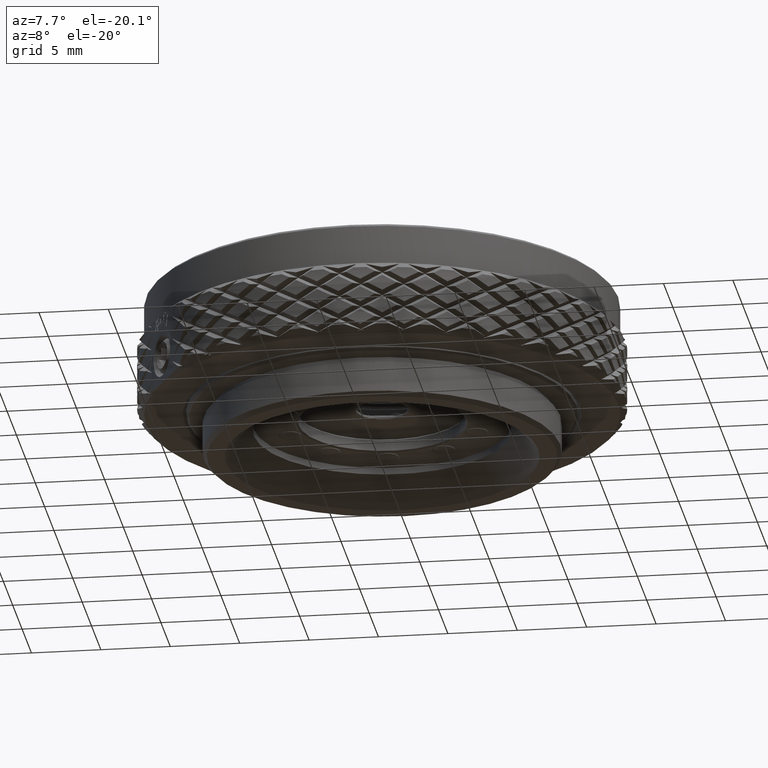
[diagram: clean part render]
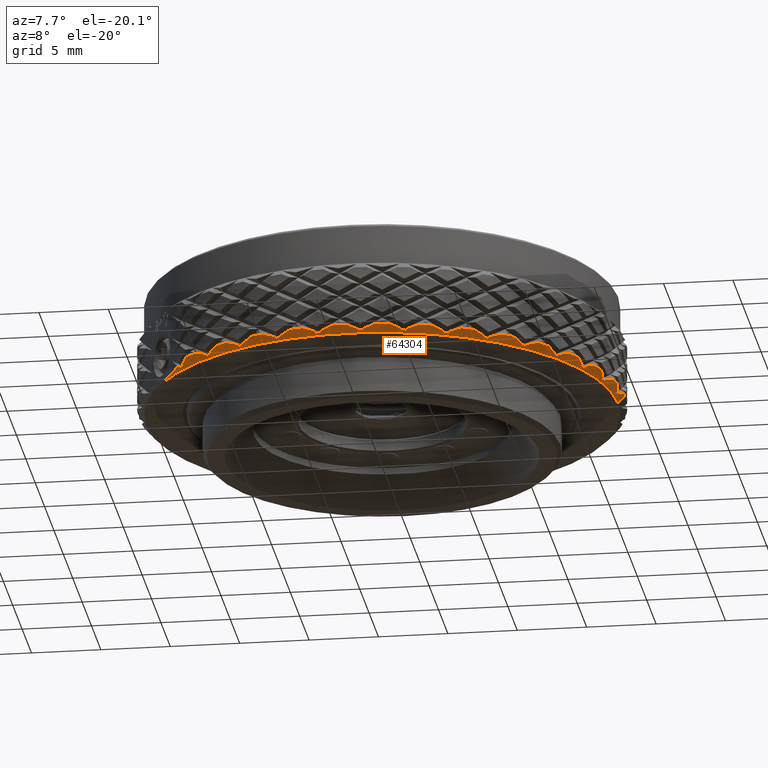
[diagram: same view with one face highlighted and labeled with its STEP entity id]
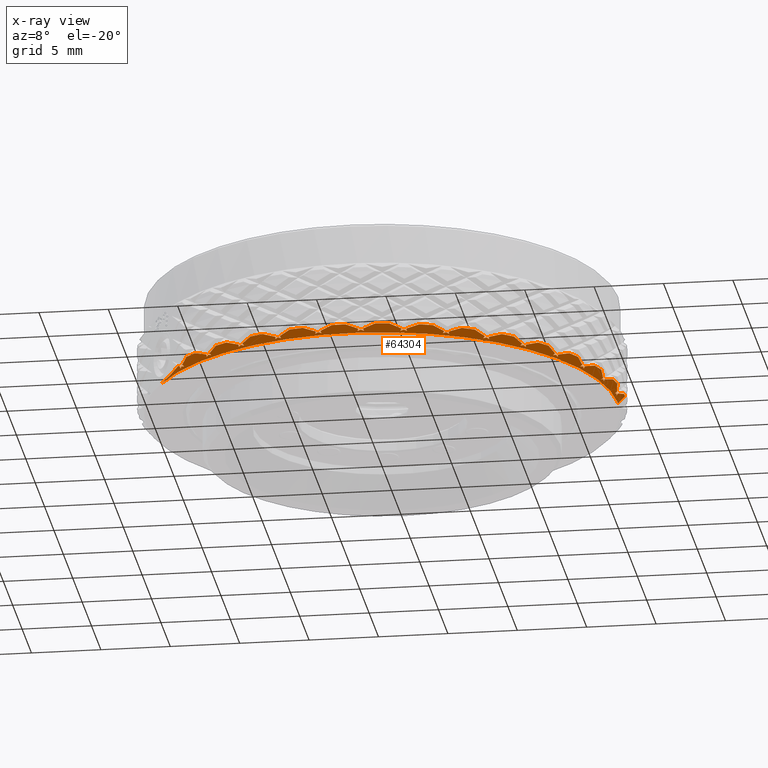
[diagram: x-ray of the same camera — body ghosted, the highlighted face saturated]
A machine part, auxiliary view. The second image highlights one B-rep face of the part: STEP entity #64304.
The next image is the same camera in x-ray: the body ghosted, the highlighted face saturated — about 0% of this face is hidden behind the body in this view.
In plain terms, the highlighted conical surface has half-angle 45 deg.
Its self-contained STEP definition (entity closure, byte-faithful):
#11 = CARTESIAN_POINT ( 'NONE',  ( -6.415839245147009429, -16.28149276879169705, 3.699999999993848210 ) ) ;
#245 = CARTESIAN_POINT ( 'NONE',  ( 11.73757925447007722, -12.54950513198462936, 3.383137136807409906 ) ) ;
#299 = CARTESIAN_POINT ( 'NONE',  ( -7.334432477055307764, -15.88886718244359919, 3.700000002909056729 ) ) ;
#312 = CARTESIAN_POINT ( 'NONE',  ( -2.783346251398040039, -17.09412065670192504, 3.516655273005997451 ) ) ;
#627 = VERTEX_POINT ( 'NONE', #52596 ) ;
#639 = CARTESIAN_POINT ( 'NONE',  ( 17.13967618823798489, -1.706910090785661360, 3.424460569076736238 ) ) ;
#843 = B_SPLINE_CURVE_WITH_KNOTS ( 'NONE', 3,
 ( #32451, #7190, #78474, #47072 ),
 .UNSPECIFIED., .F., .F.,
 ( 4, 4 ),
 ( 0.001167677214958243257, 0.001427834688373744512 ),
 .UNSPECIFIED. ) ;
#877 = EDGE_CURVE ( 'NONE', #46634, #49848, #29035, .T. ) ;
#1154 = EDGE_CURVE ( 'NONE', #19653, #77202, #35996, .T. ) ;
#1159 = B_SPLINE_CURVE_WITH_KNOTS ( 'NONE', 3,
 ( #47379, #7083, #26785, #40867 ),
 .UNSPECIFIED., .F., .F.,
 ( 4, 4 ),
 ( 0.0004258610051553587050, 0.0006169960267118395269 ),
 .UNSPECIFIED. ) ;
#1165 = VERTEX_POINT ( 'NONE', #4263 ) ;
#1170 = ORIENTED_EDGE ( 'NONE', *, *, #37964, .F. ) ;
#1174 = CARTESIAN_POINT ( 'NONE',  ( -12.96709045105941627, -11.22347279488374205, 3.349503207065584576 ) ) ;
#1325 = ORIENTED_EDGE ( 'NONE', *, *, #70221, .F. ) ;
#1499 = ORIENTED_EDGE ( 'NONE', *, *, #84024, .F. ) ;
#1673 = CARTESIAN_POINT ( 'NONE',  ( -2.305327766085383701, -17.01861298452368487, 3.374042157486635496 ) ) ;
#1717 = B_SPLINE_CURVE_WITH_KNOTS ( 'NONE', 3,
 ( #3722, #36250, #54847, #22604 ),
 .UNSPECIFIED., .F., .F.,
 ( 4, 4 ),
 ( 1.069881273654536935E-05, 0.0009893864853482733750 ),
 .UNSPECIFIED. ) ;
#1728 = CARTESIAN_POINT ( 'NONE',  ( 9.351897263808806926, -14.46457947756677953, 3.424460569076794858 ) ) ;
#1814 = B_SPLINE_CURVE_WITH_KNOTS ( 'NONE', 3,
 ( #53478, #14435, #60358, #66852 ),
 .UNSPECIFIED., .F., .F.,
 ( 4, 4 ),
 ( 0.0004384482252439095978, 0.001417134987510532346 ),
 .UNSPECIFIED. ) ;
#1825 = CARTESIAN_POINT ( 'NONE',  ( 0.6092525619809625592, -17.21368215145734126, 3.424460569076799299 ) ) ;
#1829 = EDGE_CURVE ( 'NONE', #41188, #84254, #3260, .T. ) ;
#1874 = CARTESIAN_POINT ( 'NONE',  ( -2.223279318077330036, -17.00496416933690824, 3.349503236167046261 ) ) ;
#1882 = CARTESIAN_POINT ( 'NONE',  ( 6.540424702280792424, -15.84498935854974988, 3.341768113308217547 ) ) ;
#1973 = CARTESIAN_POINT ( 'NONE',  ( -10.05363191571854742, -14.32391306190673319, 3.700000002909055841 ) ) ;
#2205 = B_SPLINE_CURVE_WITH_KNOTS ( 'NONE', 3,
 ( #6919, #71331, #12521, #38588 ),
 .UNSPECIFIED., .F., .F.,
 ( 4, 4 ),
 ( 0.000000000000000000, 0.0002601576979742232414 ),
 .UNSPECIFIED. ) ;
#2284 = CARTESIAN_POINT ( 'NONE',  ( -8.043846907927924015E-15, -2.054373064707883438E-14, 3.700000000000028599 ) ) ;
#2317 = DIRECTION ( 'NONE',  ( 1.000000000000000000, 0.000000000000000000, 0.000000000000000000 ) ) ;
#2396 = CARTESIAN_POINT ( 'NONE',  ( -10.61084418278577601, -13.56805172544394544, 3.424460569076794858 ) ) ;
#2511 = CARTESIAN_POINT ( 'NONE',  ( -5.307070888765361261, -16.33348470497534421, 3.374042157487521898 ) ) ;
#2638 = VERTEX_POINT ( 'NONE', #73838 ) ;
#2683 = CARTESIAN_POINT ( 'NONE',  ( -13.12071001686956784, -11.18213432408169794, 3.439224635507914574 ) ) ;
#2975 = EDGE_CURVE ( 'NONE', #16889, #13994, #1159, .T. ) ;
#2985 = CARTESIAN_POINT ( 'NONE',  ( 17.12256487394784443, -3.614937376948939907, 3.700000002909027863 ) ) ;
#3095 = ORIENTED_EDGE ( 'NONE', *, *, #49598, .F. ) ;
#3165 = CARTESIAN_POINT ( 'NONE',  ( 16.55294392791490665, -5.678912520995748281, 3.700000002909085151 ) ) ;
#3211 = DIRECTION ( 'NONE',  ( -0.000000000000000000, -0.000000000000000000, 1.000000000000000000 ) ) ;
#3231 = CARTESIAN_POINT ( 'NONE',  ( -8.043846907927924015E-15, -2.054373064707883438E-14, 3.700000000000028599 ) ) ;
#3232 = CARTESIAN_POINT ( 'NONE',  ( -12.72003455761851143, -11.42903499318547134, 3.300354382982450652 ) ) ;
#3260 = B_SPLINE_CURVE_WITH_KNOTS ( 'NONE', 3,
 ( #6420, #18046, #58323, #31246 ),
 .UNSPECIFIED., .F., .F.,
 ( 4, 4 ),
 ( 0.0004258610051552752214, 0.0006169960267118465742 ),
 .UNSPECIFIED. ) ;
#3596 = CARTESIAN_POINT ( 'NONE',  ( 16.64652775177444255, -4.424381957412975908, 3.424460569076730909 ) ) ;
#3637 = CARTESIAN_POINT ( 'NONE',  ( 15.49742779723643160, -7.286950587125093470, 3.324940971125176059 ) ) ;
#3718 = CARTESIAN_POINT ( 'NONE',  ( -10.86673738344357965, -13.36398370752340803, 3.424460569076801963 ) ) ;
#3722 = CARTESIAN_POINT ( 'NONE',  ( -9.219906860494807788, -14.87425014862267503, 3.700000000000030376 ) ) ;
#3778 = CARTESIAN_POINT ( 'NONE',  ( 0.9362226814563435751, -17.19899790645977689, 3.424460569076798411 ) ) ;
#3871 = CIRCLE ( 'NONE', #12152, 17.50000000000000355 ) ;
#3882 = CARTESIAN_POINT ( 'NONE',  ( -11.72763908316056103, -12.98893689010482078, 3.700000000000030376 ) ) ;
#3958 = VERTEX_POINT ( 'NONE', #49461 ) ;
#3962 = VERTEX_POINT ( 'NONE', #10070 ) ;
#3993 = AXIS2_PLACEMENT_3D ( 'NONE', #74648, #38002, #63913 ) ;
#4009 = CARTESIAN_POINT ( 'NONE',  ( -12.86299273601513349, -11.45536816383057399, 3.424460569076794414 ) ) ;
#4017 = ORIENTED_EDGE ( 'NONE', *, *, #4413, .T. ) ;
#4121 = CARTESIAN_POINT ( 'NONE',  ( -12.86251267562400180, -11.34317173439749382, 3.349503236167051590 ) ) ;
#4124 = ORIENTED_EDGE ( 'NONE', *, *, #34908, .F. ) ;
#4147 = EDGE_CURVE ( 'NONE', #22479, #9391, #32647, .T. ) ;
#4192 = VERTEX_POINT ( 'NONE', #26269 ) ;
#4263 = CARTESIAN_POINT ( 'NONE',  ( -7.334432477055307764, -15.88886718244359919, 3.700000002909056729 ) ) ;
#4281 = CARTESIAN_POINT ( 'NONE',  ( 11.64433663989690615, -12.52324016535741258, 3.300354382982450652 ) ) ;
#4413 = EDGE_CURVE ( 'NONE', #65442, #40585, #41446, .T. ) ;
#4420 = VERTEX_POINT ( 'NONE', #8508 ) ;
#4440 = CARTESIAN_POINT ( 'NONE',  ( 11.64433663989690615, -12.52324016535741258, 3.300354382982450652 ) ) ;
#4486 = CARTESIAN_POINT ( 'NONE',  ( 15.56240009450748474, -7.285090878715785756, 3.383137136807410794 ) ) ;
#4511 = EDGE_CURVE ( 'NONE', #57054, #4973, #7520, .T. ) ;
#4563 = B_SPLINE_CURVE_WITH_KNOTS ( 'NONE', 3,
 ( #71964, #78823, #82848, #50124 ),
 .UNSPECIFIED., .F., .F.,
 ( 4, 4 ),
 ( 0.0004384482252438808123, 0.001417134987510558150 ),
 .UNSPECIFIED. ) ;
#4589 = CIRCLE ( 'NONE', #40078, 17.50000000000000355 ) ;
#4697 = ORIENTED_EDGE ( 'NONE', *, *, #62473, .F. ) ;
#4801 = CARTESIAN_POINT ( 'NONE',  ( 2.843096416262850923, -17.26750713819505378, 3.699999999993834887 ) ) ;
#4858 = CARTESIAN_POINT ( 'NONE',  ( 11.79393781783043060, -12.45049425093637296, 3.349503207065557930 ) ) ;
#4973 = VERTEX_POINT ( 'NONE', #20715 ) ;
#4999 = VERTEX_POINT ( 'NONE', #21121 ) ;
#5054 = ORIENTED_EDGE ( 'NONE', *, *, #43163, .F. ) ;
#5178 = ORIENTED_EDGE ( 'NONE', *, *, #52379, .F. ) ;
#5369 = DIRECTION ( 'NONE',  ( -0.000000000000000000, -0.000000000000000000, 1.000000000000000000 ) ) ;
#5469 = CARTESIAN_POINT ( 'NONE',  ( 7.540719847686014887, -15.69343192195155723, 3.608519049354068198 ) ) ;
#5634 = CARTESIAN_POINT ( 'NONE',  ( -10.52007749316243945, -13.53398731330190508, 3.341768113308206889 ) ) ;
#6420 = CARTESIAN_POINT ( 'NONE',  ( 9.351897263808806926, -14.46457947756677953, 3.424460569076794858 ) ) ;
#6571 = CARTESIAN_POINT ( 'NONE',  ( -13.70569049600547196, -10.26104770810466960, 3.292796954545464505 ) ) ;
#6677 = CARTESIAN_POINT ( 'NONE',  ( -12.73295871553182401, -11.74000609700790676, 3.516655366740149447 ) ) ;
#6779 = ORIENTED_EDGE ( 'NONE', *, *, #21883, .F. ) ;
#6874 = CARTESIAN_POINT ( 'NONE',  ( 8.943157096842853093, -14.93874912804169774, 3.608519751366203288 ) ) ;
#6919 = CARTESIAN_POINT ( 'NONE',  ( -5.510023105049334902, -16.18832188351496981, 3.300354382982442658 ) ) ;
#7083 = CARTESIAN_POINT ( 'NONE',  ( 16.51274286480274256, -4.752911622740348285, 3.383137136807408574 ) ) ;
#7190 = CARTESIAN_POINT ( 'NONE',  ( -8.056627918266430655, -15.13943605003938586, 3.349503236167049369 ) ) ;
#7222 = B_SPLINE_CURVE_WITH_KNOTS ( 'NONE', 3,
 ( #84507, #50949, #38023, #52251 ),
 .UNSPECIFIED., .F., .F.,
 ( 4, 4 ),
 ( 0.0004258610051552816182, 0.0006169960267118467911 ),
 .UNSPECIFIED. ) ;
#7262 = CARTESIAN_POINT ( 'NONE',  ( -10.63040528320969003, -13.45757262069686711, 3.349503236167047149 ) ) ;
#7323 = EDGE_CURVE ( 'NONE', #34794, #23621, #24646, .T. ) ;
#7520 = B_SPLINE_CURVE_WITH_KNOTS ( 'NONE', 3,
 ( #67280, #53915, #34087, #47445 ),
 .UNSPECIFIED., .F., .F.,
 ( 4, 4 ),
 ( 0.0004258610051553007544, 0.0006169960267118719446 ),
 .UNSPECIFIED. ) ;
#7674 = VERTEX_POINT ( 'NONE', #67249 ) ;
#7722 = B_SPLINE_CURVE_WITH_KNOTS ( 'NONE', 3,
 ( #63673, #10865, #37349, #70514 ),
 .UNSPECIFIED., .F., .F.,
 ( 4, 4 ),
 ( 1.037394565687433795E-11, 0.0009786872588502296653 ),
 .UNSPECIFIED. ) ;
#7737 = CARTESIAN_POINT ( 'NONE',  ( -10.75467552172068864, -13.35847037523208769, 3.349503207065582355 ) ) ;
#7782 = CARTESIAN_POINT ( 'NONE',  ( 17.08758833411036804, -1.458115710043083268, 3.349503211696389648 ) ) ;
#7900 = CARTESIAN_POINT ( 'NONE',  ( 6.618858031313645363, -15.90197347051604204, 3.424460569076794858 ) ) ;
#7935 = ORIENTED_EDGE ( 'NONE', *, *, #26161, .F. ) ;
#8088 = CARTESIAN_POINT ( 'NONE',  ( 17.04121988092889595, -1.693145592740550986, 3.324940966483076465 ) ) ;
#8269 = CARTESIAN_POINT ( 'NONE',  ( -5.307070888765361261, -16.33348470497534421, 3.374042157487521898 ) ) ;
#8508 = CARTESIAN_POINT ( 'NONE',  ( 0.7705104878268731472, -17.15674903978574406, 3.374042157487619153 ) ) ;
#8512 = CARTESIAN_POINT ( 'NONE',  ( -5.223903903014544881, -16.33470554796418384, 3.349503236167047149 ) ) ;
#8627 = VERTEX_POINT ( 'NONE', #78368 ) ;
#8706 = VERTEX_POINT ( 'NONE', #47811 ) ;
#9103 = ORIENTED_EDGE ( 'NONE', *, *, #64156, .F. ) ;
#9377 = AXIS2_PLACEMENT_3D ( 'NONE', #3231, #29298, #81807 ) ;
#9379 = B_SPLINE_CURVE_WITH_KNOTS ( 'NONE', 3,
 ( #3165, #48614, #79647, #41278 ),
 .UNSPECIFIED., .F., .F.,
 ( 4, 4 ),
 ( 0.000000000000000000, 0.0009786872588502183896 ),
 .UNSPECIFIED. ) ;
#9391 = VERTEX_POINT ( 'NONE', #56781 ) ;
#9558 = CARTESIAN_POINT ( 'NONE',  ( 17.00854234307900725, -1.769634817174098984, 3.300354382982449764 ) ) ;
#9767 = CARTESIAN_POINT ( 'NONE',  ( 15.41668607435811822, -7.512494048459726237, 3.349503207065565036 ) ) ;
#9812 = ORIENTED_EDGE ( 'NONE', *, *, #17066, .F. ) ;
#9815 = ORIENTED_EDGE ( 'NONE', *, *, #73054, .F. ) ;
#9875 = CARTESIAN_POINT ( 'NONE',  ( 15.79963315834200621, -7.094192897788860641, 3.516655366740098376 ) ) ;
#9911 = AXIS2_PLACEMENT_3D ( 'NONE', #2284, #61525, #80429 ) ;
#10070 = CARTESIAN_POINT ( 'NONE',  ( 13.89409196749337561, -10.09464870240167222, 3.374042157486993876 ) ) ;
#10333 = CARTESIAN_POINT ( 'NONE',  ( 10.51610773922420883, -13.98790470795552920, 3.700000002909035413 ) ) ;
#10476 = B_SPLINE_CURVE_WITH_KNOTS ( 'NONE', 3,
 ( #81801, #62466, #3637, #29707 ),
 .UNSPECIFIED., .F., .F.,
 ( 4, 4 ),
 ( 0.001156977991967980852, 0.001417135907600643218 ),
 .UNSPECIFIED. ) ;
#10501 = CARTESIAN_POINT ( 'NONE',  ( -14.72243186433543194, -8.500000000000097700, 3.200000000000000622 ) ) ;
#10613 = VERTEX_POINT ( 'NONE', #34181 ) ;
#10673 = EDGE_CURVE ( 'NONE', #29852, #43349, #82796, .T. ) ;
#10802 = EDGE_CURVE ( 'NONE', #65534, #81107, #37656, .T. ) ;
#10865 = CARTESIAN_POINT ( 'NONE',  ( 11.46685481640652604, -13.10181294263583318, 3.608519063176804931 ) ) ;
#11012 = CARTESIAN_POINT ( 'NONE',  ( -8.138240386408154947, -15.12338478777432549, 3.374042157487417981 ) ) ;
#11094 = CARTESIAN_POINT ( 'NONE',  ( 3.606085288595353155, -16.75819178641107854, 3.341768113308205557 ) ) ;
#11150 = CARTESIAN_POINT ( 'NONE',  ( 9.301272278184907094, -14.37902121270612632, 3.324940966483079574 ) ) ;
#11404 = VERTEX_POINT ( 'NONE', #48792 ) ;
#11628 = EDGE_CURVE ( 'NONE', #51068, #63764, #79706, .T. ) ;
#11718 = B_SPLINE_CURVE_WITH_KNOTS ( 'NONE', 3,
 ( #27349, #80208, #28178, #74581 ),
 .UNSPECIFIED., .F., .F.,
 ( 4, 4 ),
 ( 1.069881275888888725E-05, 0.0009893864853483228146 ),
 .UNSPECIFIED. ) ;
#11893 = CARTESIAN_POINT ( 'NONE',  ( -8.017654366890013762, -15.24464694077140159, 3.424460569076795746 ) ) ;
#12115 = ORIENTED_EDGE ( 'NONE', *, *, #32625, .F. ) ;
#12152 = AXIS2_PLACEMENT_3D ( 'NONE', #58922, #13893, #39939 ) ;
#12197 = EDGE_CURVE ( 'NONE', #23621, #46634, #23272, .T. ) ;
#12309 = EDGE_CURVE ( 'NONE', #26761, #60605, #27489, .T. ) ;
#12391 = CARTESIAN_POINT ( 'NONE',  ( -10.86035552472460530, -13.31591242421113641, 3.383137136807451206 ) ) ;
#12521 = CARTESIAN_POINT ( 'NONE',  ( -5.375072067757528771, -16.28558800319670397, 3.349503207065578803 ) ) ;
#12728 = CARTESIAN_POINT ( 'NONE',  ( -12.86299273601513349, -11.45536816383057399, 3.424460569076794414 ) ) ;
#12769 = CARTESIAN_POINT ( 'NONE',  ( 6.919819184820946489, -15.77333650008979404, 3.424460569076794858 ) ) ;
#12825 = B_SPLINE_CURVE_WITH_KNOTS ( 'NONE', 3,
 ( #79804, #40595, #60469, #1673 ),
 .UNSPECIFIED., .F., .F.,
 ( 4, 4 ),
 ( 0.000000000000000000, 0.0002601576979742667721 ),
 .UNSPECIFIED. ) ;
#12836 = EDGE_CURVE ( 'NONE', #79911, #30262, #32452, .T. ) ;
#12953 = CARTESIAN_POINT ( 'NONE',  ( -2.474160010352363770, -17.04583744316642679, 3.424460569076794858 ) ) ;
#13113 = CARTESIAN_POINT ( 'NONE',  ( 3.821583900682138601, -16.74345306429053082, 3.374042157487317173 ) ) ;
#13429 = B_SPLINE_CURVE_WITH_KNOTS ( 'NONE', 3,
 ( #69167, #15132, #42424, #42843 ),
 .UNSPECIFIED., .F., .F.,
 ( 4, 4 ),
 ( 0.001156977991968175575, 0.001417135907600798692 ),
 .UNSPECIFIED. ) ;
#13473 = CARTESIAN_POINT ( 'NONE',  ( 13.83806139435871607, -10.25622244014030215, 3.424460569076730909 ) ) ;
#13893 = DIRECTION ( 'NONE',  ( -0.000000000000000000, -0.000000000000000000, 1.000000000000000000 ) ) ;
#13903 = B_SPLINE_CURVE_WITH_KNOTS ( 'NONE', 3,
 ( #20994, #8088, #48772, #40169 ),
 .UNSPECIFIED., .F., .F.,
 ( 4, 4 ),
 ( 0.000000000000000000, 0.0002601576979741580266 ),
 .UNSPECIFIED. ) ;
#13994 = VERTEX_POINT ( 'NONE', #83561 ) ;
#14143 = CARTESIAN_POINT ( 'NONE',  ( -8.138240386408154947, -15.12338478777432549, 3.374042157487417981 ) ) ;
#14383 = CARTESIAN_POINT ( 'NONE',  ( 17.12985916525040153, -1.352320520942169368, 3.383137136807411238 ) ) ;
#14424 = AXIS2_PLACEMENT_3D ( 'NONE', #20768, #46862, #73117 ) ;
#14434 = EDGE_CURVE ( 'NONE', #43349, #69775, #7222, .T. ) ;
#14435 = CARTESIAN_POINT ( 'NONE',  ( 9.924569613076855035, -14.19362176487775606, 3.516655366740140121 ) ) ;
#14713 = CARTESIAN_POINT ( 'NONE',  ( 13.69331823634150958, -10.24280995141196193, 3.300354382982455093 ) ) ;
#14768 = ORIENTED_EDGE ( 'NONE', *, *, #15205, .F. ) ;
#14792 = CARTESIAN_POINT ( 'NONE',  ( 6.919819184820946489, -15.77333650008979404, 3.424460569076794858 ) ) ;
#14812 = B_SPLINE_CURVE_WITH_KNOTS ( 'NONE', 3,
 ( #2511, #8512, #81506, #54455 ),
 .UNSPECIFIED., .F., .F.,
 ( 4, 4 ),
 ( 0.001167677214958281421, 0.001427834688373781375 ),
 .UNSPECIFIED. ) ;
#14962 = CARTESIAN_POINT ( 'NONE',  ( -5.478051044207318476, -16.33012549409037462, 3.424460569076795746 ) ) ;
#14992 = DIRECTION ( 'NONE',  ( 0.7071067811865524577, 0.000000000000000000, 0.7071067811865426878 ) ) ;
#15001 = CARTESIAN_POINT ( 'NONE',  ( 6.667105620061187565, -15.80067970039266534, 3.349503207065607668 ) ) ;
#15126 = ORIENTED_EDGE ( 'NONE', *, *, #20744, .F. ) ;
#15132 = CARTESIAN_POINT ( 'NONE',  ( 13.92095309692706273, -10.01592938139323863, 3.349503211696389648 ) ) ;
#15153 = ORIENTED_EDGE ( 'NONE', *, *, #53924, .F. ) ;
#15205 = EDGE_CURVE ( 'NONE', #77691, #51127, #39024, .T. ) ;
#15268 = CARTESIAN_POINT ( 'NONE',  ( 13.69331823634150958, -10.24280995141196193, 3.300354382982455093 ) ) ;
#15414 = CIRCLE ( 'NONE', #50993, 17.50000000000000355 ) ;
#15454 = CARTESIAN_POINT ( 'NONE',  ( -2.149822462023663672, -17.08977194925255816, 3.424460569076794414 ) ) ;
#15591 = CARTESIAN_POINT ( 'NONE',  ( 6.618858031313645363, -15.90197347051604204, 3.424460569076794858 ) ) ;
#15654 = ORIENTED_EDGE ( 'NONE', *, *, #32460, .F. ) ;
#15745 = ORIENTED_EDGE ( 'NONE', *, *, #67691, .F. ) ;
#15967 = EDGE_CURVE ( 'NONE', #17025, #38980, #29651, .T. ) ;
#16153 = DIRECTION ( 'NONE',  ( 1.000000000000000000, 0.000000000000000000, 0.000000000000000000 ) ) ;
#16219 = B_SPLINE_CURVE_WITH_KNOTS ( 'NONE', 3,
 ( #63319, #83930, #4486, #76596 ),
 .UNSPECIFIED., .F., .F.,
 ( 4, 4 ),
 ( 0.000000000000000000, 0.0001911349967832253534 ),
 .UNSPECIFIED. ) ;
#16240 = AXIS2_PLACEMENT_3D ( 'NONE', #57390, #41703, #74053 ) ;
#16264 = CARTESIAN_POINT ( 'NONE',  ( 13.97295919387705254, -9.857917193236799491, 3.300354382982451540 ) ) ;
#16536 = CARTESIAN_POINT ( 'NONE',  ( 0.9362226814563435751, -17.19899790645977689, 3.424460569076798411 ) ) ;
#16648 = CARTESIAN_POINT ( 'NONE',  ( 16.55513880781116143, -4.568928001198359290, 3.374042157487773697 ) ) ;
#16673 = ORIENTED_EDGE ( 'NONE', *, *, #22414, .F. ) ;
#16771 = EDGE_CURVE ( 'NONE', #70562, #57557, #55390, .T. ) ;
#16774 = CARTESIAN_POINT ( 'NONE',  ( -13.03305128371705202, -11.07075852227246493, 3.300354382982448875 ) ) ;
#16889 = VERTEX_POINT ( 'NONE', #31776 ) ;
#17009 = B_SPLINE_CURVE_WITH_KNOTS ( 'NONE', 3,
 ( #15268, #54730, #82205, #55553 ),
 .UNSPECIFIED., .F., .F.,
 ( 4, 4 ),
 ( 0.000000000000000000, 0.0002601576979741032744 ),
 .UNSPECIFIED. ) ;
#17025 = VERTEX_POINT ( 'NONE', #27525 ) ;
#17066 = EDGE_CURVE ( 'NONE', #42639, #62503, #64553, .T. ) ;
#17509 = AXIS2_PLACEMENT_3D ( 'NONE', #29688, #3211, #21277 ) ;
#17707 = CARTESIAN_POINT ( 'NONE',  ( 6.813262386322763930, -15.73820933212357787, 3.349503236167054698 ) ) ;
#17958 = CARTESIAN_POINT ( 'NONE',  ( 3.572905909221056220, -16.72293226041175274, 3.300354382982447987 ) ) ;
#17980 = B_SPLINE_CURVE_WITH_KNOTS ( 'NONE', 3,
 ( #11893, #39217, #25534, #299 ),
 .UNSPECIFIED., .F., .F.,
 ( 4, 4 ),
 ( 0.0004384482252439074294, 0.001417134987510608240 ),
 .UNSPECIFIED. ) ;
#18017 = CARTESIAN_POINT ( 'NONE',  ( -13.06347311735485839, -11.16272887446540452, 3.383137136807450318 ) ) ;
#18038 = CARTESIAN_POINT ( 'NONE',  ( 15.47327731991142841, -7.451537627039583001, 3.374042157486793592 ) ) ;
#18046 = CARTESIAN_POINT ( 'NONE',  ( 9.308150859367863461, -14.44365512576112742, 3.383137136807450318 ) ) ;
#18099 = DIRECTION ( 'NONE',  ( 1.000000000000000000, 0.000000000000000000, 0.000000000000000000 ) ) ;
#18197 = CARTESIAN_POINT ( 'NONE',  ( 15.50860707434333641, -7.204528203574067646, 3.300354382982443546 ) ) ;
#18632 = B_SPLINE_CURVE_WITH_KNOTS ( 'NONE', 3,
 ( #12769, #66017, #5469, #38830 ),
 .UNSPECIFIED., .F., .F.,
 ( 4, 4 ),
 ( 0.0004384482252438749034, 0.001417134987510526491 ),
 .UNSPECIFIED. ) ;
#18984 = CARTESIAN_POINT ( 'NONE',  ( 17.16901510611786819, -1.380928014624381195, 3.424460569076729133 ) ) ;
#18991 = B_SPLINE_CURVE_WITH_KNOTS ( 'NONE', 3,
 ( #43274, #34713, #55414, #54578 ),
 .UNSPECIFIED., .F., .F.,
 ( 4, 4 ),
 ( 0.001167677214958290095, 0.001427834688373751885 ),
 .UNSPECIFIED. ) ;
#19063 = VERTEX_POINT ( 'NONE', #19332 ) ;
#19093 = CARTESIAN_POINT ( 'NONE',  ( 3.655749399074906592, -16.73037397548385385, 3.324940966483078242 ) ) ;
#19151 = ORIENTED_EDGE ( 'NONE', *, *, #21284, .F. ) ;
#19265 = CARTESIAN_POINT ( 'NONE',  ( -10.86673738344357965, -13.36398370752340803, 3.424460569076801963 ) ) ;
#19332 = CARTESIAN_POINT ( 'NONE',  ( -1.283803530288845307, -17.45284643252883328, 3.700000002909046071 ) ) ;
#19396 = CARTESIAN_POINT ( 'NONE',  ( -10.61084418278577601, -13.56805172544394544, 3.424460569076794858 ) ) ;
#19653 = VERTEX_POINT ( 'NONE', #74361 ) ;
#19792 = CARTESIAN_POINT ( 'NONE',  ( 0.9362226814563435751, -17.19899790645977689, 3.424460569076798411 ) ) ;
#19844 = CARTESIAN_POINT ( 'NONE',  ( 6.618858031313645363, -15.90197347051604204, 3.424460569076794858 ) ) ;
#19860 = EDGE_CURVE ( 'NONE', #39580, #59288, #27462, .T. ) ;
#19863 = CARTESIAN_POINT ( 'NONE',  ( 17.05118856817026440, -1.295796448199451500, 3.300354382982453316 ) ) ;
#19945 = CARTESIAN_POINT ( 'NONE',  ( 17.05232913713159348, -1.748975144960944972, 3.341768113308190014 ) ) ;
#20002 = CARTESIAN_POINT ( 'NONE',  ( 4.036731386004460020, -16.61706712208004788, 3.300354382982440882 ) ) ;
#20084 = CARTESIAN_POINT ( 'NONE',  ( -13.03305128371705202, -11.07075852227246493, 3.300354382982448875 ) ) ;
#20184 = CARTESIAN_POINT ( 'NONE',  ( 6.501482697708574676, -15.81622087459148140, 3.300354382982456869 ) ) ;
#20190 = ORIENTED_EDGE ( 'NONE', *, *, #61745, .F. ) ;
#20374 = CARTESIAN_POINT ( 'NONE',  ( 11.94878132835378359, -12.26770320626249244, 3.324940971125191602 ) ) ;
#20459 = B_SPLINE_CURVE_WITH_KNOTS ( 'NONE', 3,
 ( #15591, #67156, #1882, #27988 ),
 .UNSPECIFIED., .F., .F.,
 ( 4, 4 ),
 ( 0.0004258610051552767935, 0.0006169960267118306365 ),
 .UNSPECIFIED. ) ;
#20569 = CARTESIAN_POINT ( 'NONE',  ( 3.992176857627763198, -16.75543391957075912, 3.424460569076793526 ) ) ;
#20715 = CARTESIAN_POINT ( 'NONE',  ( -5.510023105049334902, -16.18832188351496981, 3.300354382982442658 ) ) ;
#20744 = EDGE_CURVE ( 'NONE', #52120, #22089, #32410, .T. ) ;
#20768 = CARTESIAN_POINT ( 'NONE',  ( -8.043846907927924015E-15, -2.054373064707883438E-14, 3.700000000000028599 ) ) ;
#20994 = CARTESIAN_POINT ( 'NONE',  ( 17.00854234307900725, -1.769634817174098984, 3.300354382982449764 ) ) ;
#21121 = CARTESIAN_POINT ( 'NONE',  ( 3.673083255677513037, -16.82826495193556227, 3.424460569076794414 ) ) ;
#21211 = CARTESIAN_POINT ( 'NONE',  ( 6.926456042608383434, -15.72529975874832608, 3.383137136807458756 ) ) ;
#21213 = VERTEX_POINT ( 'NONE', #16648 ) ;
#21277 = DIRECTION ( 'NONE',  ( 1.000000000000000000, 0.000000000000000000, 0.000000000000000000 ) ) ;
#21282 = CIRCLE ( 'NONE', #14424, 17.50000000000000355 ) ;
#21284 = EDGE_CURVE ( 'NONE', #80711, #40083, #1814, .T. ) ;
#21317 = CARTESIAN_POINT ( 'NONE',  ( -7.893064748434887257, -15.16976100337384104, 3.300354382982444434 ) ) ;
#21412 = CARTESIAN_POINT ( 'NONE',  ( 6.584323628133825324, -15.80875072193825126, 3.324940966483096449 ) ) ;
#21461 = CARTESIAN_POINT ( 'NONE',  ( 9.625052829767824392, -14.28427106715142436, 3.424460569076798411 ) ) ;
#21563 = CARTESIAN_POINT ( 'NONE',  ( 11.86833906714335107, -12.41330946256407408, 3.374042157486985882 ) ) ;
#21584 = VERTEX_POINT ( 'NONE', #48468 ) ;
#21597 = CARTESIAN_POINT ( 'NONE',  ( -2.141333363018592451, -16.99072127577172253, 3.324940995656051168 ) ) ;
#21646 = CARTESIAN_POINT ( 'NONE',  ( -5.166770542694416157, -16.43126666008517489, 3.424460569076796634 ) ) ;
#21751 = VERTEX_POINT ( 'NONE', #11012 ) ;
#21883 = EDGE_CURVE ( 'NONE', #39092, #64968, #76414, .T. ) ;
#21941 = EDGE_CURVE ( 'NONE', #58440, #4192, #55886, .T. ) ;
#22073 = B_SPLINE_CURVE_WITH_KNOTS ( 'NONE', 3,
 ( #73548, #1874, #21597, #36053 ),
 .UNSPECIFIED., .F., .F.,
 ( 4, 4 ),
 ( 0.001167677214958577191, 0.001427834688374078446 ),
 .UNSPECIFIED. ) ;
#22089 = VERTEX_POINT ( 'NONE', #66930 ) ;
#22100 = CARTESIAN_POINT ( 'NONE',  ( 11.99935714532459485, -12.24157960222888164, 3.341768113308185129 ) ) ;
#22232 = CARTESIAN_POINT ( 'NONE',  ( 17.49999999999999645, -2.054373064707883438E-14, 3.700000000000028599 ) ) ;
#22271 = ORIENTED_EDGE ( 'NONE', *, *, #46442, .F. ) ;
#22414 = EDGE_CURVE ( 'NONE', #42605, #79911, #54536, .T. ) ;
#22440 = CARTESIAN_POINT ( 'NONE',  ( -10.84684452297005208, -13.21998804526621640, 3.300354382982442658 ) ) ;
#22479 = VERTEX_POINT ( 'NONE', #10501 ) ;
#22492 = VERTEX_POINT ( 'NONE', #18197 ) ;
#22570 = CARTESIAN_POINT ( 'NONE',  ( 16.64652775177444255, -4.424381957412975908, 3.424460569076730909 ) ) ;
#22602 = ORIENTED_EDGE ( 'NONE', *, *, #65614, .F. ) ;
#22604 = CARTESIAN_POINT ( 'NONE',  ( -8.305873010146031632, -15.08954987516224477, 3.424460569076793526 ) ) ;
#22609 = ORIENTED_EDGE ( 'NONE', *, *, #34958, .F. ) ;
#22619 = EDGE_CURVE ( 'NONE', #64968, #26761, #61420, .T. ) ;
#22645 = EDGE_CURVE ( 'NONE', #57557, #29852, #54587, .T. ) ;
#22741 = ORIENTED_EDGE ( 'NONE', *, *, #19860, .F. ) ;
#22798 = CIRCLE ( 'NONE', #81811, 17.50000000000000355 ) ;
#22907 = CARTESIAN_POINT ( 'NONE',  ( 12.02092935724590461, -12.33609740897752971, 3.424460569076731797 ) ) ;
#22914 = CARTESIAN_POINT ( 'NONE',  ( 0.9821641895506678654, -17.11362604954088340, 3.341768113308210886 ) ) ;
#22949 = VERTEX_POINT ( 'NONE', #50982 ) ;
#22983 = ORIENTED_EDGE ( 'NONE', *, *, #29889, .F. ) ;
#23037 = CARTESIAN_POINT ( 'NONE',  ( 17.28488828761528850, -1.090237448392519681, 3.516655366740092603 ) ) ;
#23272 = B_SPLINE_CURVE_WITH_KNOTS ( 'NONE', 3,
 ( #30162, #56834, #62915, #82250 ),
 .UNSPECIFIED., .F., .F.,
 ( 4, 4 ),
 ( 0.0004384482252439017916, 0.001417134987510557716 ),
 .UNSPECIFIED. ) ;
#23621 = VERTEX_POINT ( 'NONE', #25461 ) ;
#23674 = CARTESIAN_POINT ( 'NONE',  ( 0.6092525619809625592, -17.21368215145734126, 3.424460569076799299 ) ) ;
#23696 = CARTESIAN_POINT ( 'NONE',  ( 16.54951302625995879, -4.402673708487921722, 3.324940971125194267 ) ) ;
#23781 = EDGE_CURVE ( 'NONE', #57060, #4420, #82358, .T. ) ;
#23906 = CARTESIAN_POINT ( 'NONE',  ( 13.83806139435871607, -10.25622244014030215, 3.424460569076730909 ) ) ;
#24071 = CARTESIAN_POINT ( 'NONE',  ( 5.880639142709163991, -16.48235672690712761, 3.699999999993830446 ) ) ;
#24119 = CARTESIAN_POINT ( 'NONE',  ( 16.55262714628155862, -4.485789903248051047, 3.349503211696384319 ) ) ;
#24551 = CIRCLE ( 'NONE', #3993, 17.50000000000000355 ) ;
#24577 = ORIENTED_EDGE ( 'NONE', *, *, #7323, .F. ) ;
#24614 = B_SPLINE_CURVE_WITH_KNOTS ( 'NONE', 3,
 ( #52523, #40408, #21211, #14792 ),
 .UNSPECIFIED., .F., .F.,
 ( 4, 4 ),
 ( 0.000000000000000000, 0.0001911349721995817474 ),
 .UNSPECIFIED. ) ;
#24637 = EDGE_CURVE ( 'NONE', #44207, #69709, #24942, .T. ) ;
#24646 = B_SPLINE_CURVE_WITH_KNOTS ( 'NONE', 3,
 ( #83252, #50543, #66506, #20569 ),
 .UNSPECIFIED., .F., .F.,
 ( 4, 4 ),
 ( 0.000000000000000000, 0.0001911349721995849458 ),
 .UNSPECIFIED. ) ;
#24775 = CARTESIAN_POINT ( 'NONE',  ( -10.84684452297005208, -13.21998804526621640, 3.300354382982442658 ) ) ;
#24942 = B_SPLINE_CURVE_WITH_KNOTS ( 'NONE', 3,
 ( #34536, #54831, #40980, #81041 ),
 .UNSPECIFIED., .F., .F.,
 ( 4, 4 ),
 ( 0.000000000000000000, 0.0009786872588503929462 ),
 .UNSPECIFIED. ) ;
#25030 = CARTESIAN_POINT ( 'NONE',  ( 15.44699728602949129, -7.620519453493685980, 3.424460569076723804 ) ) ;
#25141 = VERTEX_POINT ( 'NONE', #8269 ) ;
#25196 = B_SPLINE_CURVE_WITH_KNOTS ( 'NONE', 3,
 ( #4440, #49864, #4858, #70962 ),
 .UNSPECIFIED., .F., .F.,
 ( 4, 4 ),
 ( 0.000000000000000000, 0.0002601576979741252295 ),
 .UNSPECIFIED. ) ;
#25238 = CARTESIAN_POINT ( 'NONE',  ( 15.27292232350740342, -8.543292328015372306, 3.700000002909079821 ) ) ;
#25247 = B_SPLINE_CURVE_WITH_KNOTS ( 'NONE', 3,
 ( #1825, #41591, #59762, #41174 ),
 .UNSPECIFIED., .F., .F.,
 ( 4, 4 ),
 ( 0.0004258610051552740288, 0.0006169960267118368164 ),
 .UNSPECIFIED. ) ;
#25266 = CARTESIAN_POINT ( 'NONE',  ( 0.7705104878268731472, -17.15674903978574406, 3.374042157487619153 ) ) ;
#25406 = CARTESIAN_POINT ( 'NONE',  ( 14.03044332432867947, -9.991431429904285011, 3.424460569076732686 ) ) ;
#25461 = CARTESIAN_POINT ( 'NONE',  ( 3.992176857627763198, -16.75543391957075912, 3.424460569076793526 ) ) ;
#25534 = CARTESIAN_POINT ( 'NONE',  ( -7.568057220844484512, -15.68026693689358098, 3.608519049354089070 ) ) ;
#25696 = CARTESIAN_POINT ( 'NONE',  ( 8.729173288502888539, -15.16744980868799964, 3.699999999993780708 ) ) ;
#25727 = CARTESIAN_POINT ( 'NONE',  ( -8.043846907927924015E-15, -2.054373064707883438E-14, 3.700000000000028599 ) ) ;
#25730 = AXIS2_PLACEMENT_3D ( 'NONE', #50655, #76902, #18099 ) ;
#26161 = EDGE_CURVE ( 'NONE', #81107, #44207, #24551, .T. ) ;
#26203 = EDGE_CURVE ( 'NONE', #4999, #31661, #63233, .T. ) ;
#26269 = CARTESIAN_POINT ( 'NONE',  ( -12.86299273601513349, -11.45536816383057399, 3.424460569076794414 ) ) ;
#26331 = CARTESIAN_POINT ( 'NONE',  ( 11.64433663989690615, -12.52324016535741258, 3.300354382982450652 ) ) ;
#26738 = ORIENTED_EDGE ( 'NONE', *, *, #2975, .F. ) ;
#26761 = VERTEX_POINT ( 'NONE', #68673 ) ;
#26785 = CARTESIAN_POINT ( 'NONE',  ( 16.46599962158208541, -4.765679334661203193, 3.341768113308180244 ) ) ;
#27349 = CARTESIAN_POINT ( 'NONE',  ( -0.2858257683094767021, -17.49766566230914577, 3.699999999993782929 ) ) ;
#27462 = B_SPLINE_CURVE_WITH_KNOTS ( 'NONE', 3,
 ( #47607, #46751, #7737, #73418 ),
 .UNSPECIFIED., .F., .F.,
 ( 4, 4 ),
 ( 0.000000000000000000, 0.0002601576979742650374 ),
 .UNSPECIFIED. ) ;
#27489 = B_SPLINE_CURVE_WITH_KNOTS ( 'NONE', 3,
 ( #44754, #71035, #78338, #639 ),
 .UNSPECIFIED., .F., .F.,
 ( 4, 4 ),
 ( 0.000000000000000000, 0.0009786872588503033911 ),
 .UNSPECIFIED. ) ;
#27525 = CARTESIAN_POINT ( 'NONE',  ( 1.853153784991217412, -17.40160398213305726, 3.700000002909038521 ) ) ;
#27583 = EDGE_CURVE ( 'NONE', #57839, #68968, #29201, .T. ) ;
#27904 = VERTEX_POINT ( 'NONE', #56891 ) ;
#27988 = CARTESIAN_POINT ( 'NONE',  ( 6.501482697708574676, -15.81622087459148140, 3.300354382982456869 ) ) ;
#28034 = B_SPLINE_CURVE_WITH_KNOTS ( 'NONE', 3,
 ( #12728, #6677, #65554, #65117 ),
 .UNSPECIFIED., .F., .F.,
 ( 4, 4 ),
 ( 0.0004384482252438922506, 0.001417134987510645754 ),
 .UNSPECIFIED. ) ;
#28070 = CARTESIAN_POINT ( 'NONE',  ( 13.99234098065157106, -9.902284430369459045, 3.341768113308191346 ) ) ;
#28108 = VECTOR ( 'NONE', #14992, 1000.000000000000000 ) ;
#28119 = VERTEX_POINT ( 'NONE', #79285 ) ;
#28178 = CARTESIAN_POINT ( 'NONE',  ( 0.3136563717083828973, -17.31639676900310221, 3.516655273005989457 ) ) ;
#28345 = CARTESIAN_POINT ( 'NONE',  ( 13.74150328782120845, -10.24753289575386717, 3.341768113308189569 ) ) ;
#28386 = EDGE_CURVE ( 'NONE', #8706, #21751, #41352, .T. ) ;
#28568 = EDGE_CURVE ( 'NONE', #77202, #48988, #84527, .T. ) ;
#28584 = B_SPLINE_CURVE_WITH_KNOTS ( 'NONE', 3,
 ( #72539, #7262, #79409, #33352 ),
 .UNSPECIFIED., .F., .F.,
 ( 4, 4 ),
 ( 0.001167677214958236535, 0.001427834688373747331 ),
 .UNSPECIFIED. ) ;
#28715 = CARTESIAN_POINT ( 'NONE',  ( -9.219906860494807788, -14.87425014862267503, 3.700000000000030376 ) ) ;
#28832 = VERTEX_POINT ( 'NONE', #23674 ) ;
#28838 = CARTESIAN_POINT ( 'NONE',  ( -4.909152404434373729, -16.60891939529049921, 3.516655366740143673 ) ) ;
#28846 = EDGE_CURVE ( 'NONE', #8627, #37685, #7722, .T. ) ;
#28951 = ORIENTED_EDGE ( 'NONE', *, *, #4147, .F. ) ;
#29035 = CIRCLE ( 'NONE', #9911, 17.50000000000000355 ) ;
#29139 = EDGE_CURVE ( 'NONE', #4420, #76795, #18991, .T. ) ;
#29195 = CARTESIAN_POINT ( 'NONE',  ( 12.84474639090551662, -11.88538978137172109, 3.700000002909034968 ) ) ;
#29201 = B_SPLINE_CURVE_WITH_KNOTS ( 'NONE', 3,
 ( #57634, #83895, #77408, #51602 ),
 .UNSPECIFIED., .F., .F.,
 ( 4, 4 ),
 ( 0.000000000000000000, 0.0001911349721995941886 ),
 .UNSPECIFIED. ) ;
#29278 = CARTESIAN_POINT ( 'NONE',  ( 1.004767545935397965, -17.07081023856519764, 3.300354382982452428 ) ) ;
#29298 = DIRECTION ( 'NONE',  ( -0.000000000000000000, -0.000000000000000000, 1.000000000000000000 ) ) ;
#29408 = EDGE_CURVE ( 'NONE', #73731, #17025, #44394, .T. ) ;
#29472 = CARTESIAN_POINT ( 'NONE',  ( 6.919819184820946489, -15.77333650008979404, 3.424460569076794858 ) ) ;
#29651 = CIRCLE ( 'NONE', #80556, 17.50000000000000355 ) ;
#29684 = ORIENTED_EDGE ( 'NONE', *, *, #28568, .F. ) ;
#29688 = CARTESIAN_POINT ( 'NONE',  ( -8.043846907927924015E-15, -2.054373064707883438E-14, 3.700000000000028599 ) ) ;
#29707 = CARTESIAN_POINT ( 'NONE',  ( 15.50860707434333641, -7.204528203574067646, 3.300354382982443546 ) ) ;
#29733 = CARTESIAN_POINT ( 'NONE',  ( -8.043846907927924015E-15, -2.054373064707883438E-14, 3.700000000000028599 ) ) ;
#29824 = CARTESIAN_POINT ( 'NONE',  ( 17.39287685827495622, -0.7963013896105627376, 3.608519049354041996 ) ) ;
#29852 = VERTEX_POINT ( 'NONE', #46307 ) ;
#29889 = EDGE_CURVE ( 'NONE', #10613, #80711, #62917, .T. ) ;
#29935 = CARTESIAN_POINT ( 'NONE',  ( -13.07833587605593095, -11.20888810760235010, 3.424460569076795746 ) ) ;
#29995 = ORIENTED_EDGE ( 'NONE', *, *, #37088, .F. ) ;
#30162 = CARTESIAN_POINT ( 'NONE',  ( 3.992176857627763198, -16.75543391957075912, 3.424460569076793526 ) ) ;
#30262 = VERTEX_POINT ( 'NONE', #3718 ) ;
#30276 = EDGE_CURVE ( 'NONE', #4192, #42605, #28034, .T. ) ;
#30371 = CARTESIAN_POINT ( 'NONE',  ( -11.15692236440728635, -13.24685097431536107, 3.516655273008086446 ) ) ;
#30433 = B_SPLINE_CURVE_WITH_KNOTS ( 'NONE', 3,
 ( #42267, #68587, #9767, #69411 ),
 .UNSPECIFIED., .F., .F.,
 ( 4, 4 ),
 ( 0.000000000000000000, 0.0002601576979741068523 ),
 .UNSPECIFIED. ) ;
#30518 = B_SPLINE_CURVE_WITH_KNOTS ( 'NONE', 3,
 ( #61319, #23037, #29824, #82343 ),
 .UNSPECIFIED., .F., .F.,
 ( 4, 4 ),
 ( 0.0004384482252436453778, 0.001417134987510495266 ),
 .UNSPECIFIED. ) ;
#30571 = VERTEX_POINT ( 'NONE', #82098 ) ;
#30670 = B_SPLINE_CURVE_WITH_KNOTS ( 'NONE', 3,
 ( #57392, #44904, #58247, #84505 ),
 .UNSPECIFIED., .F., .F.,
 ( 4, 4 ),
 ( 1.069881275865651392E-05, 0.0009893864853482703392 ),
 .UNSPECIFIED. ) ;
#30738 = ORIENTED_EDGE ( 'NONE', *, *, #60671, .F. ) ;
#30936 = CARTESIAN_POINT ( 'NONE',  ( -12.81525617829517927, -11.44683602124813682, 3.383137136807456091 ) ) ;
#31011 = CARTESIAN_POINT ( 'NONE',  ( -8.043846907927924015E-15, -2.054373064707883438E-14, 3.700000000000028599 ) ) ;
#31246 = CARTESIAN_POINT ( 'NONE',  ( 9.221096482853910814, -14.40116313623195055, 3.300354382982441770 ) ) ;
#31469 = EDGE_CURVE ( 'NONE', #65108, #70562, #58610, .T. ) ;
#31489 = VERTEX_POINT ( 'NONE', #19844 ) ;
#31661 = VERTEX_POINT ( 'NONE', #56201 ) ;
#31776 = CARTESIAN_POINT ( 'NONE',  ( 16.55945397509558248, -4.739886701427505677, 3.424460569076732686 ) ) ;
#31962 = ORIENTED_EDGE ( 'NONE', *, *, #34378, .F. ) ;
#32180 = ORIENTED_EDGE ( 'NONE', *, *, #10673, .F. ) ;
#32317 = CARTESIAN_POINT ( 'NONE',  ( 11.69090402349993063, -12.53649098320865107, 3.341768113308186017 ) ) ;
#32355 = CIRCLE ( 'NONE', #73582, 16.99999999999997158 ) ;
#32410 = B_SPLINE_CURVE_WITH_KNOTS ( 'NONE', 3,
 ( #70883, #5634, #45899, #19396 ),
 .UNSPECIFIED., .F., .F.,
 ( 4, 4 ),
 ( 0.000000000000000000, 0.0001911349721995936736 ),
 .UNSPECIFIED. ) ;
#32449 = CARTESIAN_POINT ( 'NONE',  ( -10.85372452578135061, -13.26791268350874198, 3.341768113308203780 ) ) ;
#32451 = CARTESIAN_POINT ( 'NONE',  ( -8.138240386408154947, -15.12338478777432549, 3.374042157487417981 ) ) ;
#32452 = B_SPLINE_CURVE_WITH_KNOTS ( 'NONE', 3,
 ( #3882, #56638, #30371, #50158 ),
 .UNSPECIFIED., .F., .F.,
 ( 4, 4 ),
 ( 1.069881273653779010E-05, 0.0009893864853482516909 ),
 .UNSPECIFIED. ) ;
#32460 = EDGE_CURVE ( 'NONE', #627, #16889, #9379, .T. ) ;
#32520 = ORIENTED_EDGE ( 'NONE', *, *, #48381, .F. ) ;
#32597 = CARTESIAN_POINT ( 'NONE',  ( -5.057554531110002749, -16.33533783511427373, 3.300354382982451540 ) ) ;
#32625 = EDGE_CURVE ( 'NONE', #21213, #7674, #34783, .T. ) ;
#32647 = B_SPLINE_CURVE_WITH_KNOTS ( 'NONE', 3,
 ( #39526, #73540, #6571, #32682 ),
 .UNSPECIFIED., .F., .F.,
 ( 4, 4 ),
 ( 0.000000000000000000, 0.003044995453543067245 ),
 .UNSPECIFIED. ) ;
#32682 = CARTESIAN_POINT ( 'NONE',  ( -13.20511677977438758, -11.12806681755047045, 3.468728391614337880 ) ) ;
#32689 = CARTESIAN_POINT ( 'NONE',  ( 17.13967618823798489, -1.706910090785661360, 3.424460569076736238 ) ) ;
#32734 = ORIENTED_EDGE ( 'NONE', *, *, #46649, .F. ) ;
#32843 = EDGE_CURVE ( 'NONE', #38980, #4999, #30670, .T. ) ;
#32958 = CARTESIAN_POINT ( 'NONE',  ( 0.6096763763691407378, -17.11426924365984803, 3.324940966483080462 ) ) ;
#32963 = CARTESIAN_POINT ( 'NONE',  ( 1.545607990320570169, -17.34235731526920787, 3.608519049354065977 ) ) ;
#32969 = CARTESIAN_POINT ( 'NONE',  ( 9.150825323994249416, -14.70436578947896678, 3.516655273005982796 ) ) ;
#33106 = DIRECTION ( 'NONE',  ( 1.000000000000000000, 0.000000000000000000, 0.000000000000000000 ) ) ;
#33147 = CARTESIAN_POINT ( 'NONE',  ( 6.378201901022879206, -16.10200353654298766, 3.516655273005999227 ) ) ;
#33352 = CARTESIAN_POINT ( 'NONE',  ( -10.47488537030977263, -13.51661557126404212, 3.300354382982449764 ) ) ;
#33424 = B_SPLINE_CURVE_WITH_KNOTS ( 'NONE', 3,
 ( #74886, #28070, #80951, #61606 ),
 .UNSPECIFIED., .F., .F.,
 ( 4, 4 ),
 ( 0.000000000000000000, 0.0001911349967832017991 ),
 .UNSPECIFIED. ) ;
#33508 = ORIENTED_EDGE ( 'NONE', *, *, #12836, .F. ) ;
#33584 = B_SPLINE_CURVE_WITH_KNOTS ( 'NONE', 3,
 ( #2396, #56294, #57559, #37747 ),
 .UNSPECIFIED., .F., .F.,
 ( 4, 4 ),
 ( 0.0004384482252439164283, 0.001417134987510626238 ),
 .UNSPECIFIED. ) ;
#33745 = CARTESIAN_POINT ( 'NONE',  ( 17.13967618823798489, -1.706910090785661360, 3.424460569076736238 ) ) ;
#34087 = CARTESIAN_POINT ( 'NONE',  ( -5.499624892259732611, -16.23560806077792051, 3.341768113308202448 ) ) ;
#34181 = CARTESIAN_POINT ( 'NONE',  ( 9.618147723751990341, -14.13907190683147697, 3.300354382982440882 ) ) ;
#34378 = EDGE_CURVE ( 'NONE', #3962, #81445, #13429, .T. ) ;
#34394 = CARTESIAN_POINT ( 'NONE',  ( 15.30218531777030755, -7.633167397816035482, 3.300354382982451540 ) ) ;
#34462 = EDGE_CURVE ( 'NONE', #51127, #69046, #24614, .T. ) ;
#34513 = CARTESIAN_POINT ( 'NONE',  ( 16.54579556291582776, -4.319579749542940661, 3.300354382982447099 ) ) ;
#34536 = CARTESIAN_POINT ( 'NONE',  ( 13.50201642901994781, -11.13308369016844246, 3.700000002909082930 ) ) ;
#34713 = CARTESIAN_POINT ( 'NONE',  ( 0.8488032934632093740, -17.12866925057602074, 3.349503236167057363 ) ) ;
#34783 = B_SPLINE_CURVE_WITH_KNOTS ( 'NONE', 3,
 ( #82602, #24119, #23696, #50283 ),
 .UNSPECIFIED., .F., .F.,
 ( 4, 4 ),
 ( 0.001156977991968017932, 0.001417135907600643435 ),
 .UNSPECIFIED. ) ;
#34794 = VERTEX_POINT ( 'NONE', #41141 ) ;
#34798 = CARTESIAN_POINT ( 'NONE',  ( 15.44699728602949129, -7.620519453493685980, 3.424460569076723804 ) ) ;
#34841 = DIRECTION ( 'NONE',  ( -0.000000000000000000, -0.000000000000000000, -1.000000000000000000 ) ) ;
#34859 = VERTEX_POINT ( 'NONE', #48691 ) ;
#34908 = EDGE_CURVE ( 'NONE', #45543, #39137, #4589, .T. ) ;
#34911 = CARTESIAN_POINT ( 'NONE',  ( -13.00034749102725229, -11.14723652484891048, 3.324940966483084903 ) ) ;
#34958 = EDGE_CURVE ( 'NONE', #78749, #627, #74516, .T. ) ;
#35026 = EDGE_CURVE ( 'NONE', #49848, #31489, #35638, .T. ) ;
#35190 = CARTESIAN_POINT ( 'NONE',  ( 14.03044332432867947, -9.991431429904285011, 3.424460569076732686 ) ) ;
#35262 = CARTESIAN_POINT ( 'NONE',  ( 17.09058276351053607, -1.323942544959941570, 3.341768113308190902 ) ) ;
#35322 = CARTESIAN_POINT ( 'NONE',  ( 9.461127983873408809, -14.33299624289437624, 3.374042157487223470 ) ) ;
#35400 = CARTESIAN_POINT ( 'NONE',  ( -6.103617130692927439, -16.30619950482916991, 3.608519751366256578 ) ) ;
#35475 = VERTEX_POINT ( 'NONE', #76843 ) ;
#35630 = B_SPLINE_CURVE_WITH_KNOTS ( 'NONE', 3,
 ( #29278, #22914, #48651, #16536 ),
 .UNSPECIFIED., .F., .F.,
 ( 4, 4 ),
 ( 0.000000000000000000, 0.0001911349721995770040 ),
 .UNSPECIFIED. ) ;
#35638 = B_SPLINE_CURVE_WITH_KNOTS ( 'NONE', 3,
 ( #54668, #40423, #33147, #7900 ),
 .UNSPECIFIED., .F., .F.,
 ( 4, 4 ),
 ( 1.069881275894415953E-05, 0.0009893864853485544002 ),
 .UNSPECIFIED. ) ;
#35823 = B_SPLINE_CURVE_WITH_KNOTS ( 'NONE', 3,
 ( #34798, #53813, #52954, #34394 ),
 .UNSPECIFIED., .F., .F.,
 ( 4, 4 ),
 ( 0.0004258610051553701975, 0.0006169960267118123134 ),
 .UNSPECIFIED. ) ;
#35977 = B_SPLINE_CURVE_WITH_KNOTS ( 'NONE', 3,
 ( #35190, #81671, #42884, #42043 ),
 .UNSPECIFIED., .F., .F.,
 ( 4, 4 ),
 ( 0.0004384482252436445104, 0.001417134987510493098 ),
 .UNSPECIFIED. ) ;
#35996 = B_SPLINE_CURVE_WITH_KNOTS ( 'NONE', 3,
 ( #29935, #18017, #69547, #50131 ),
 .UNSPECIFIED., .F., .F.,
 ( 4, 4 ),
 ( 0.0004258610051553226011, 0.0006169960267118847382 ),
 .UNSPECIFIED. ) ;
#36000 = ORIENTED_EDGE ( 'NONE', *, *, #34462, .F. ) ;
#36053 = CARTESIAN_POINT ( 'NONE',  ( -2.059490349785508823, -16.97588346807339832, 3.300354382982448875 ) ) ;
#36161 = CARTESIAN_POINT ( 'NONE',  ( 9.566276454087160985, -14.20409352428078265, 3.324940995656056941 ) ) ;
#36169 = CARTESIAN_POINT ( 'NONE',  ( 12.29944672469596156, -12.19342409151687612, 3.516655366740096600 ) ) ;
#36250 = CARTESIAN_POINT ( 'NONE',  ( -8.917113841929335649, -14.95430924849421750, 3.608519751370387496 ) ) ;
#36580 = EDGE_LOOP ( 'NONE', ( #1170, #4017, #73595, #30738, #1499, #68583, #15153, #38189, #60704, #78871, #6779, #29995, #12115, #73374, #26738, #15654, #22609, #81061, #84177, #22271, #72114, #9815, #9812, #72025, #66050, #20190, #31962, #15745, #32520, #84782, #7935, #73330, #40415, #64266, #55253, #62527, #57720, #60695, #19151, #22983, #46076, #62819, #71516, #61177, #4697, #68017, #36000, #14768, #38834, #82238, #67281, #75826, #79810, #24577, #1325, #32734, #47338, #45764, #62861, #43345, #22602, #37022, #41560, #64213, #83095, #3095, #53327, #74839, #36600, #84619, #79098, #32180, #61657, #76205, #57358, #59945, #5054, #43262, #70506, #49882, #78239, #65595, #5178, #46053, #54219, #40993, #4124, #45998, #15126, #41263, #22741, #9103, #33508, #16673, #68944, #47698, #75227, #29684, #54634, #56337, #28951 ) ) ;
#36589 = VERTEX_POINT ( 'NONE', #78035 ) ;
#36600 = ORIENTED_EDGE ( 'NONE', *, *, #53465, .F. ) ;
#37022 = ORIENTED_EDGE ( 'NONE', *, *, #29139, .F. ) ;
#37053 = CARTESIAN_POINT ( 'NONE',  ( 15.58900729868032542, -7.325632623696732182, 3.424460569076738015 ) ) ;
#37062 = CARTESIAN_POINT ( 'NONE',  ( 6.501482697708574676, -15.81622087459148140, 3.300354382982456869 ) ) ;
#37088 = EDGE_CURVE ( 'NONE', #7674, #39092, #61140, .T. ) ;
#37173 = CARTESIAN_POINT ( 'NONE',  ( 13.78975219462129509, -10.25200371749894224, 3.383137136807409906 ) ) ;
#37349 = CARTESIAN_POINT ( 'NONE',  ( 11.62933365611495873, -12.83411768959621035, 3.516655294185391689 ) ) ;
#37377 = AXIS2_PLACEMENT_3D ( 'NONE', #31011, #5369, #83954 ) ;
#37389 = CARTESIAN_POINT ( 'NONE',  ( 6.749828462560577336, -15.79200873075150113, 3.374042157485660720 ) ) ;
#37429 = EDGE_CURVE ( 'NONE', #13994, #21213, #48752, .T. ) ;
#37433 = CARTESIAN_POINT ( 'NONE',  ( 12.57416175193701058, -12.04311909541448600, 3.608519049354050878 ) ) ;
#37604 = CARTESIAN_POINT ( 'NONE',  ( -5.057554531110002749, -16.33533783511427373, 3.300354382982451540 ) ) ;
#37656 = B_SPLINE_CURVE_WITH_KNOTS ( 'NONE', 3,
 ( #80555, #36169, #37433, #75760 ),
 .UNSPECIFIED., .F., .F.,
 ( 4, 4 ),
 ( 0.0004384482252436775786, 0.001417134987510538634 ),
 .UNSPECIFIED. ) ;
#37685 = VERTEX_POINT ( 'NONE', #49543 ) ;
#37747 = CARTESIAN_POINT ( 'NONE',  ( -10.05363191571854742, -14.32391306190673319, 3.700000002909055841 ) ) ;
#37805 = CARTESIAN_POINT ( 'NONE',  ( 17.12256487394784443, -3.614937376948939907, 3.700000002909027863 ) ) ;
#37917 = CARTESIAN_POINT ( 'NONE',  ( -12.72003455761851143, -11.42903499318547134, 3.300354382982450652 ) ) ;
#37964 = EDGE_CURVE ( 'NONE', #65442, #22479, #32355, .T. ) ;
#38002 = DIRECTION ( 'NONE',  ( -0.000000000000000000, -0.000000000000000000, 1.000000000000000000 ) ) ;
#38023 = CARTESIAN_POINT ( 'NONE',  ( -2.512263897187671624, -16.95669110320900330, 3.341768113308210442 ) ) ;
#38140 = DIRECTION ( 'NONE',  ( -0.000000000000000000, -0.000000000000000000, 1.000000000000000000 ) ) ;
#38189 = ORIENTED_EDGE ( 'NONE', *, *, #78382, .F. ) ;
#38388 = CARTESIAN_POINT ( 'NONE',  ( -2.474160010352363770, -17.04583744316642679, 3.424460569076794858 ) ) ;
#38588 = CARTESIAN_POINT ( 'NONE',  ( -5.307070888765361261, -16.33348470497534421, 3.374042157487521898 ) ) ;
#38786 = CARTESIAN_POINT ( 'NONE',  ( 15.30218531777030755, -7.633167397816035482, 3.300354382982451540 ) ) ;
#38815 = CARTESIAN_POINT ( 'NONE',  ( -3.405561277510452900, -17.16543481490944600, 3.699999999993822897 ) ) ;
#38830 = CARTESIAN_POINT ( 'NONE',  ( 7.849472732121975938, -15.64083686793931172, 3.700000002909037633 ) ) ;
#38834 = ORIENTED_EDGE ( 'NONE', *, *, #39390, .F. ) ;
#38900 = CARTESIAN_POINT ( 'NONE',  ( 9.461127983873408809, -14.33299624289437624, 3.374042157487223470 ) ) ;
#38980 = VERTEX_POINT ( 'NONE', #4801 ) ;
#39024 = B_SPLINE_CURVE_WITH_KNOTS ( 'NONE', 3,
 ( #82134, #17707, #81298, #81721 ),
 .UNSPECIFIED., .F., .F.,
 ( 4, 4 ),
 ( 0.001167677214958516693, 0.001427834688373999950 ),
 .UNSPECIFIED. ) ;
#39092 = VERTEX_POINT ( 'NONE', #54134 ) ;
#39137 = VERTEX_POINT ( 'NONE', #28715 ) ;
#39217 = CARTESIAN_POINT ( 'NONE',  ( -7.795897378847003623, -15.46544421824691184, 3.516655366740149002 ) ) ;
#39390 = EDGE_CURVE ( 'NONE', #83907, #77691, #46468, .T. ) ;
#39440 = CARTESIAN_POINT ( 'NONE',  ( -8.305873010146031632, -15.08954987516224477, 3.424460569076793526 ) ) ;
#39526 = CARTESIAN_POINT ( 'NONE',  ( -14.72243186433543194, -8.500000000000097700, 3.200000000000000622 ) ) ;
#39534 = DIRECTION ( 'NONE',  ( -0.000000000000000000, -0.000000000000000000, 1.000000000000000000 ) ) ;
#39580 = VERTEX_POINT ( 'NONE', #22440 ) ;
#39680 = CARTESIAN_POINT ( 'NONE',  ( -12.93328110472295300, -11.29946741631134444, 3.374042157487027627 ) ) ;
#39939 = DIRECTION ( 'NONE',  ( 1.000000000000000000, 0.000000000000000000, 0.000000000000000000 ) ) ;
#40078 = AXIS2_PLACEMENT_3D ( 'NONE', #29733, #62076, #16153 ) ;
#40083 = VERTEX_POINT ( 'NONE', #10333 ) ;
#40136 = VERTEX_POINT ( 'NONE', #4281 ) ;
#40169 = CARTESIAN_POINT ( 'NONE',  ( 17.10490451281696522, -1.539469270072828744, 3.374042157486500049 ) ) ;
#40178 = VERTEX_POINT ( 'NONE', #42412 ) ;
#40408 = CARTESIAN_POINT ( 'NONE',  ( 6.932833705502250865, -15.67726570134638031, 3.341768113308209998 ) ) ;
#40415 = ORIENTED_EDGE ( 'NONE', *, *, #67743, .F. ) ;
#40423 = CARTESIAN_POINT ( 'NONE',  ( 6.132020226590456424, -16.29553964464092886, 3.608519751366238371 ) ) ;
#40425 = CARTESIAN_POINT ( 'NONE',  ( -8.043846907927924015E-15, -2.054373064707883438E-14, 3.700000000000028599 ) ) ;
#40585 = VERTEX_POINT ( 'NONE', #49107 ) ;
#40595 = CARTESIAN_POINT ( 'NONE',  ( -2.455992146716503566, -16.94809781667698445, 3.324940966483088456 ) ) ;
#40867 = CARTESIAN_POINT ( 'NONE',  ( 16.41922757240593000, -4.778188563463256600, 3.300354382982440882 ) ) ;
#40928 = CARTESIAN_POINT ( 'NONE',  ( -8.017654366890013762, -15.24464694077140159, 3.424460569076795746 ) ) ;
#40980 = CARTESIAN_POINT ( 'NONE',  ( 13.73406568096959468, -10.55137043526620211, 3.516655295162658401 ) ) ;
#40993 = ORIENTED_EDGE ( 'NONE', *, *, #78006, .F. ) ;
#41141 = CARTESIAN_POINT ( 'NONE',  ( 4.036731386004460020, -16.61706712208004788, 3.300354382982440882 ) ) ;
#41174 = CARTESIAN_POINT ( 'NONE',  ( 0.5294929850144218797, -17.09215484370790605, 3.300354382982449764 ) ) ;
#41188 = VERTEX_POINT ( 'NONE', #59545 ) ;
#41263 = ORIENTED_EDGE ( 'NONE', *, *, #49768, .F. ) ;
#41278 = CARTESIAN_POINT ( 'NONE',  ( 16.55945397509558248, -4.739886701427505677, 3.424460569076732686 ) ) ;
#41352 = B_SPLINE_CURVE_WITH_KNOTS ( 'NONE', 3,
 ( #59624, #53603, #79393, #14143 ),
 .UNSPECIFIED., .F., .F.,
 ( 4, 4 ),
 ( 0.000000000000000000, 0.0002601576979742223740 ),
 .UNSPECIFIED. ) ;
#41446 = LINE ( 'NONE', #22232, #28108 ) ;
#41560 = ORIENTED_EDGE ( 'NONE', *, *, #23781, .F. ) ;
#41591 = CARTESIAN_POINT ( 'NONE',  ( 0.5824305987855281641, -17.17328216766600235, 3.383137136807457868 ) ) ;
#41703 = DIRECTION ( 'NONE',  ( -0.000000000000000000, -0.000000000000000000, 1.000000000000000000 ) ) ;
#41749 = CARTESIAN_POINT ( 'NONE',  ( 9.513936244823989696, -14.26873485828530974, 3.349503236167050702 ) ) ;
#42043 = CARTESIAN_POINT ( 'NONE',  ( 14.76054432489056545, -9.400868647883362073, 3.700000002909031860 ) ) ;
#42251 = B_SPLINE_CURVE_WITH_KNOTS ( 'NONE', 3,
 ( #39440, #52399, #78620, #84233 ),
 .UNSPECIFIED., .F., .F.,
 ( 4, 4 ),
 ( 0.0004258610051553078559, 0.0006169960267118720530 ),
 .UNSPECIFIED. ) ;
#42267 = CARTESIAN_POINT ( 'NONE',  ( 15.30218531777030755, -7.633167397816035482, 3.300354382982451540 ) ) ;
#42412 = CARTESIAN_POINT ( 'NONE',  ( 14.76054432489056545, -9.400868647883362073, 3.700000002909031860 ) ) ;
#42424 = CARTESIAN_POINT ( 'NONE',  ( 13.94724248748364737, -9.937018878169171288, 3.324940971125191158 ) ) ;
#42554 = DIRECTION ( 'NONE',  ( 1.000000000000000000, 0.000000000000000000, 0.000000000000000000 ) ) ;
#42605 = VERTEX_POINT ( 'NONE', #81997 ) ;
#42639 = VERTEX_POINT ( 'NONE', #62253 ) ;
#42788 = CARTESIAN_POINT ( 'NONE',  ( 15.58900729868032542, -7.325632623696732182, 3.424460569076738015 ) ) ;
#42843 = CARTESIAN_POINT ( 'NONE',  ( 13.97295919387705254, -9.857917193236799491, 3.300354382982451540 ) ) ;
#42884 = CARTESIAN_POINT ( 'NONE',  ( 14.52247174892337789, -9.604377939873833370, 3.608519049354041108 ) ) ;
#42956 = CARTESIAN_POINT ( 'NONE',  ( 16.46503764717938978, -4.708763352022292459, 3.324940966483064919 ) ) ;
#43163 = EDGE_CURVE ( 'NONE', #4973, #25141, #2205, .T. ) ;
#43215 = CARTESIAN_POINT ( 'NONE',  ( 16.00401755476979915, -6.856944174837125594, 3.608519049354043773 ) ) ;
#43262 = ORIENTED_EDGE ( 'NONE', *, *, #4511, .F. ) ;
#43274 = CARTESIAN_POINT ( 'NONE',  ( 0.7705104878268731472, -17.15674903978574406, 3.374042157487619153 ) ) ;
#43345 = ORIENTED_EDGE ( 'NONE', *, *, #29408, .F. ) ;
#43349 = VERTEX_POINT ( 'NONE', #12953 ) ;
#43555 = CARTESIAN_POINT ( 'NONE',  ( 1.004767545935397965, -17.07081023856519764, 3.300354382982452428 ) ) ;
#43564 = CONICAL_SURFACE ( 'NONE', #16240, 17.50000000000000355, 0.7853981633974552734 ) ;
#43598 = CARTESIAN_POINT ( 'NONE',  ( 3.639478636809531320, -16.79330345896492815, 3.383137136807450318 ) ) ;
#43698 = CARTESIAN_POINT ( 'NONE',  ( -8.017654366890013762, -15.24464694077140159, 3.424460569076795746 ) ) ;
#43749 = CARTESIAN_POINT ( 'NONE',  ( -5.130167282074276081, -16.39945820661803921, 3.383137136807453871 ) ) ;
#43821 = CARTESIAN_POINT ( 'NONE',  ( 16.81244360842843122, -4.159052863649577603, 3.516655366740095268 ) ) ;
#44162 = CARTESIAN_POINT ( 'NONE',  ( -8.043846907927924015E-15, -2.054373064707883438E-14, 3.700000000000028599 ) ) ;
#44207 = VERTEX_POINT ( 'NONE', #75501 ) ;
#44357 = CARTESIAN_POINT ( 'NONE',  ( -12.79143056386888233, -11.38636123492748453, 3.324940995656056941 ) ) ;
#44394 = B_SPLINE_CURVE_WITH_KNOTS ( 'NONE', 3,
 ( #19792, #45859, #32963, #59226 ),
 .UNSPECIFIED., .F., .F.,
 ( 4, 4 ),
 ( 0.0004384482252438874259, 0.001417134987510540803 ),
 .UNSPECIFIED. ) ;
#44754 = CARTESIAN_POINT ( 'NONE',  ( 17.30094029467160865, -2.632007792926596590, 3.700000002909082930 ) ) ;
#44904 = CARTESIAN_POINT ( 'NONE',  ( 3.123795180812445782, -17.12857810904664646, 3.608519751366240147 ) ) ;
#44931 = EDGE_CURVE ( 'NONE', #1165, #73643, #15414, .T. ) ;
#44989 = CARTESIAN_POINT ( 'NONE',  ( 0.6900157176482462074, -17.13580037969776271, 3.349503207065581023 ) ) ;
#45003 = B_SPLINE_CURVE_WITH_KNOTS ( 'NONE', 3,
 ( #42788, #9875, #43215, #81577 ),
 .UNSPECIFIED., .F., .F.,
 ( 4, 4 ),
 ( 0.0004384482252436596892, 0.001417134987510481822 ),
 .UNSPECIFIED. ) ;
#45170 = CARTESIAN_POINT ( 'NONE',  ( 3.738642186880368090, -16.73721395399873657, 3.349503207065579247 ) ) ;
#45543 = VERTEX_POINT ( 'NONE', #1973 ) ;
#45764 = ORIENTED_EDGE ( 'NONE', *, *, #32843, .F. ) ;
#45830 = EDGE_CURVE ( 'NONE', #84254, #35475, #78146, .T. ) ;
#45859 = CARTESIAN_POINT ( 'NONE',  ( 1.239836464385015935, -17.27480206401223839, 3.516655366740139677 ) ) ;
#45863 = CARTESIAN_POINT ( 'NONE',  ( 8.729173288502888539, -15.16744980868799964, 3.699999999993780708 ) ) ;
#45899 = CARTESIAN_POINT ( 'NONE',  ( -10.56539824407276917, -13.55113300638809370, 3.383137136807452094 ) ) ;
#45998 = ORIENTED_EDGE ( 'NONE', *, *, #60943, .F. ) ;
#46053 = ORIENTED_EDGE ( 'NONE', *, *, #28386, .F. ) ;
#46076 = ORIENTED_EDGE ( 'NONE', *, *, #46381, .F. ) ;
#46307 = CARTESIAN_POINT ( 'NONE',  ( -3.405561277510452900, -17.16543481490944600, 3.699999999993822897 ) ) ;
#46381 = EDGE_CURVE ( 'NONE', #35475, #10613, #53500, .T. ) ;
#46442 = EDGE_CURVE ( 'NONE', #73615, #22492, #10476, .T. ) ;
#46464 = CARTESIAN_POINT ( 'NONE',  ( 11.98820890793043326, -12.19446461318757891, 3.300354382982446211 ) ) ;
#46468 = B_SPLINE_CURVE_WITH_KNOTS ( 'NONE', 3,
 ( #20184, #21412, #15001, #47121 ),
 .UNSPECIFIED., .F., .F.,
 ( 4, 4 ),
 ( 0.000000000000000000, 0.0002601576979743507978 ),
 .UNSPECIFIED. ) ;
#46634 = VERTEX_POINT ( 'NONE', #52078 ) ;
#46649 = EDGE_CURVE ( 'NONE', #31661, #22949, #68871, .T. ) ;
#46677 = EDGE_CURVE ( 'NONE', #84221, #3958, #74927, .T. ) ;
#46751 = CARTESIAN_POINT ( 'NONE',  ( -10.80101061902270665, -13.28939752720727441, 3.324940966483076465 ) ) ;
#46862 = DIRECTION ( 'NONE',  ( -0.000000000000000000, -0.000000000000000000, 1.000000000000000000 ) ) ;
#47072 = CARTESIAN_POINT ( 'NONE',  ( -7.893064748434887257, -15.16976100337384104, 3.300354382982444434 ) ) ;
#47121 = CARTESIAN_POINT ( 'NONE',  ( 6.749828462560577336, -15.79200873075150113, 3.374042157485660720 ) ) ;
#47338 = ORIENTED_EDGE ( 'NONE', *, *, #26203, .F. ) ;
#47379 = CARTESIAN_POINT ( 'NONE',  ( 16.55945397509558248, -4.739886701427505677, 3.424460569076732686 ) ) ;
#47445 = CARTESIAN_POINT ( 'NONE',  ( -5.510023105049334902, -16.18832188351496981, 3.300354382982442658 ) ) ;
#47449 = CARTESIAN_POINT ( 'NONE',  ( -7.934428770965687328, -15.19492293949632966, 3.341768113308206445 ) ) ;
#47496 = EDGE_CURVE ( 'NONE', #69046, #36589, #18632, .T. ) ;
#47607 = CARTESIAN_POINT ( 'NONE',  ( -10.84684452297005208, -13.21998804526621640, 3.300354382982442658 ) ) ;
#47698 = ORIENTED_EDGE ( 'NONE', *, *, #21941, .F. ) ;
#47811 = CARTESIAN_POINT ( 'NONE',  ( -8.312011254441383556, -14.94431627504272697, 3.300354382982446211 ) ) ;
#48136 = CARTESIAN_POINT ( 'NONE',  ( -13.20511677977438758, -11.12806681755047045, 3.468728391614337880 ) ) ;
#48213 = CARTESIAN_POINT ( 'NONE',  ( 17.05118856817026440, -1.295796448199451500, 3.300354382982453316 ) ) ;
#48381 = EDGE_CURVE ( 'NONE', #69709, #11404, #73993, .T. ) ;
#48468 = CARTESIAN_POINT ( 'NONE',  ( 17.05118856817026440, -1.295796448199451500, 3.300354382982453316 ) ) ;
#48614 = CARTESIAN_POINT ( 'NONE',  ( 16.56361807465034275, -5.365893961831726067, 3.608519062207119710 ) ) ;
#48644 = CARTESIAN_POINT ( 'NONE',  ( 11.98820890793043326, -12.19446461318757891, 3.300354382982446211 ) ) ;
#48651 = CARTESIAN_POINT ( 'NONE',  ( 0.9593152406867164750, -17.15635625888151239, 3.383137136807455203 ) ) ;
#48691 = CARTESIAN_POINT ( 'NONE',  ( 17.00854234307900725, -1.769634817174098984, 3.300354382982449764 ) ) ;
#48752 = B_SPLINE_CURVE_WITH_KNOTS ( 'NONE', 3,
 ( #69281, #42956, #50722, #76967 ),
 .UNSPECIFIED., .F., .F.,
 ( 4, 4 ),
 ( 0.000000000000000000, 0.0002601576979740682005 ),
 .UNSPECIFIED. ) ;
#48772 = CARTESIAN_POINT ( 'NONE',  ( 17.07334036720978787, -1.616423536346577317, 3.349503207065569477 ) ) ;
#48792 = CARTESIAN_POINT ( 'NONE',  ( 13.69331823634150958, -10.24280995141196193, 3.300354382982455093 ) ) ;
#48946 = DIRECTION ( 'NONE',  ( -0.000000000000000000, -0.000000000000000000, 1.000000000000000000 ) ) ;
#48988 = VERTEX_POINT ( 'NONE', #56673 ) ;
#49107 = CARTESIAN_POINT ( 'NONE',  ( 17.49999999999999645, -2.054373064707883438E-14, 3.700000000000028599 ) ) ;
#49334 = CARTESIAN_POINT ( 'NONE',  ( 9.221096482853910814, -14.40116313623195055, 3.300354382982441770 ) ) ;
#49354 = CARTESIAN_POINT ( 'NONE',  ( -13.07833587605593095, -11.20888810760235010, 3.424460569076795746 ) ) ;
#49461 = CARTESIAN_POINT ( 'NONE',  ( 11.98820890793043326, -12.19446461318757891, 3.300354382982446211 ) ) ;
#49543 = CARTESIAN_POINT ( 'NONE',  ( 11.78435882347839048, -12.56228199871287110, 3.424460569076734462 ) ) ;
#49598 = EDGE_CURVE ( 'NONE', #19063, #27904, #3871, .T. ) ;
#49673 = CARTESIAN_POINT ( 'NONE',  ( -5.478051044207318476, -16.33012549409037462, 3.424460569076795746 ) ) ;
#49768 = EDGE_CURVE ( 'NONE', #59288, #52120, #28584, .T. ) ;
#49848 = VERTEX_POINT ( 'NONE', #24071 ) ;
#49860 = CARTESIAN_POINT ( 'NONE',  ( -12.76760226878035986, -11.43805819905609766, 3.341768113308209553 ) ) ;
#49864 = CARTESIAN_POINT ( 'NONE',  ( 11.71927038410281341, -12.48713813059957722, 3.324940966483068916 ) ) ;
#49882 = ORIENTED_EDGE ( 'NONE', *, *, #44931, .F. ) ;
#50124 = CARTESIAN_POINT ( 'NONE',  ( -1.283803530288845307, -17.45284643252883328, 3.700000002909046071 ) ) ;
#50131 = CARTESIAN_POINT ( 'NONE',  ( -13.03305128371705202, -11.07075852227246493, 3.300354382982448875 ) ) ;
#50158 = CARTESIAN_POINT ( 'NONE',  ( -10.86673738344357965, -13.36398370752340803, 3.424460569076801963 ) ) ;
#50283 = CARTESIAN_POINT ( 'NONE',  ( 16.54579556291582776, -4.319579749542940661, 3.300354382982447099 ) ) ;
#50543 = CARTESIAN_POINT ( 'NONE',  ( 4.022136333111971496, -16.66323085048695773, 3.341768113308207333 ) ) ;
#50655 = CARTESIAN_POINT ( 'NONE',  ( -8.043846907927924015E-15, -2.054373064707883438E-14, 3.700000000000028599 ) ) ;
#50722 = CARTESIAN_POINT ( 'NONE',  ( 16.51034119618357821, -4.639009584927891616, 3.349503207065549937 ) ) ;
#50949 = CARTESIAN_POINT ( 'NONE',  ( -2.493337237908963999, -17.00129745727465291, 3.383137136807453871 ) ) ;
#50982 = CARTESIAN_POINT ( 'NONE',  ( 3.821583900682138601, -16.74345306429053082, 3.374042157487317173 ) ) ;
#50993 = AXIS2_PLACEMENT_3D ( 'NONE', #25727, #38140, #84199 ) ;
#51030 = CARTESIAN_POINT ( 'NONE',  ( 0.5294929850144218797, -17.09215484370790605, 3.300354382982449764 ) ) ;
#51068 = VERTEX_POINT ( 'NONE', #53608 ) ;
#51127 = VERTEX_POINT ( 'NONE', #81937 ) ;
#51602 = CARTESIAN_POINT ( 'NONE',  ( -2.149822462023663672, -17.08977194925255816, 3.424460569076794414 ) ) ;
#52078 = CARTESIAN_POINT ( 'NONE',  ( 4.930549212841679463, -16.79105966166407526, 3.700000002909039409 ) ) ;
#52120 = VERTEX_POINT ( 'NONE', #64228 ) ;
#52251 = CARTESIAN_POINT ( 'NONE',  ( -2.530938279398884827, -16.91202150685543160, 3.300354382982439105 ) ) ;
#52379 = EDGE_CURVE ( 'NONE', #21751, #51068, #843, .T. ) ;
#52399 = CARTESIAN_POINT ( 'NONE',  ( -8.308177169599401779, -15.04111159227349148, 3.383137136807451650 ) ) ;
#52523 = CARTESIAN_POINT ( 'NONE',  ( 6.938951357893653693, -15.62923779572289362, 3.300354382982452428 ) ) ;
#52558 = EDGE_CURVE ( 'NONE', #48988, #58440, #75447, .T. ) ;
#52596 = CARTESIAN_POINT ( 'NONE',  ( 16.55294392791490665, -5.678912520995748281, 3.700000002909085151 ) ) ;
#52792 = B_SPLINE_CURVE_WITH_KNOTS ( 'NONE', 3,
 ( #19265, #12391, #32449, #24775 ),
 .UNSPECIFIED., .F., .F.,
 ( 4, 4 ),
 ( 0.0004258610051553008628, 0.0006169960267118797508 ),
 .UNSPECIFIED. ) ;
#52954 = CARTESIAN_POINT ( 'NONE',  ( 15.35043932992532945, -7.629210669331406791, 3.341768113308187793 ) ) ;
#53227 = CIRCLE ( 'NONE', #9377, 17.50000000000000355 ) ;
#53327 = ORIENTED_EDGE ( 'NONE', *, *, #78862, .F. ) ;
#53370 = EDGE_CURVE ( 'NONE', #40083, #8627, #57620, .T. ) ;
#53465 = EDGE_CURVE ( 'NONE', #58941, #57839, #22073, .T. ) ;
#53478 = CARTESIAN_POINT ( 'NONE',  ( 9.625052829767824392, -14.28427106715142436, 3.424460569076798411 ) ) ;
#53500 = B_SPLINE_CURVE_WITH_KNOTS ( 'NONE', 3,
 ( #35322, #41749, #36161, #60779 ),
 .UNSPECIFIED., .F., .F.,
 ( 4, 4 ),
 ( 0.001167677214958397214, 0.001427834688373900637 ),
 .UNSPECIFIED. ) ;
#53603 = CARTESIAN_POINT ( 'NONE',  ( -8.254520378621629462, -15.00442635848849449, 3.324940966483077354 ) ) ;
#53608 = CARTESIAN_POINT ( 'NONE',  ( -7.893064748434887257, -15.16976100337384104, 3.300354382982444434 ) ) ;
#53813 = CARTESIAN_POINT ( 'NONE',  ( 15.39871115299146176, -7.624994468156073069, 3.383137136807407241 ) ) ;
#53884 = CARTESIAN_POINT ( 'NONE',  ( -11.72763908316056103, -12.98893689010482078, 3.700000000000030376 ) ) ;
#53915 = CARTESIAN_POINT ( 'NONE',  ( -5.488967164252328779, -16.28287705789232831, 3.383137136807451650 ) ) ;
#53924 = EDGE_CURVE ( 'NONE', #34859, #2638, #13903, .T. ) ;
#53936 = EDGE_CURVE ( 'NONE', #69775, #58941, #12825, .T. ) ;
#54051 = EDGE_CURVE ( 'NONE', #63764, #1165, #17980, .T. ) ;
#54134 = CARTESIAN_POINT ( 'NONE',  ( 16.64652775177444255, -4.424381957412975908, 3.424460569076730909 ) ) ;
#54219 = ORIENTED_EDGE ( 'NONE', *, *, #81209, .F. ) ;
#54455 = CARTESIAN_POINT ( 'NONE',  ( -5.057554531110002749, -16.33533783511427373, 3.300354382982451540 ) ) ;
#54536 = CIRCLE ( 'NONE', #17509, 17.50000000000000355 ) ;
#54578 = CARTESIAN_POINT ( 'NONE',  ( 1.004767545935397965, -17.07081023856519764, 3.300354382982452428 ) ) ;
#54587 = CIRCLE ( 'NONE', #25730, 17.50000000000000355 ) ;
#54634 = ORIENTED_EDGE ( 'NONE', *, *, #1154, .F. ) ;
#54668 = CARTESIAN_POINT ( 'NONE',  ( 5.880639142709163991, -16.48235672690712761, 3.699999999993830446 ) ) ;
#54730 = CARTESIAN_POINT ( 'NONE',  ( 13.76060149722791159, -10.19390815452406862, 3.324940966483075577 ) ) ;
#54831 = CARTESIAN_POINT ( 'NONE',  ( 13.62199677856847124, -10.84377542635301062, 3.608519062207101058 ) ) ;
#54847 = CARTESIAN_POINT ( 'NONE',  ( -8.612309456204064517, -15.02611404228349556, 3.516655273008084226 ) ) ;
#55123 = CARTESIAN_POINT ( 'NONE',  ( -4.379498343788370995, -16.94314003833326154, 3.700000002909053176 ) ) ;
#55253 = ORIENTED_EDGE ( 'NONE', *, *, #77711, .F. ) ;
#55390 = B_SPLINE_CURVE_WITH_KNOTS ( 'NONE', 3,
 ( #21646, #28838, #80047, #55123 ),
 .UNSPECIFIED., .F., .F.,
 ( 4, 4 ),
 ( 0.0004384482252439082968, 0.001417134987510602169 ),
 .UNSPECIFIED. ) ;
#55414 = CARTESIAN_POINT ( 'NONE',  ( 0.9268891764635139863, -17.10002323089337395, 3.324940995656074705 ) ) ;
#55553 = CARTESIAN_POINT ( 'NONE',  ( 13.89409196749337561, -10.09464870240167222, 3.374042157486993876 ) ) ;
#55805 = EDGE_CURVE ( 'NONE', #25141, #65108, #14812, .T. ) ;
#55886 = B_SPLINE_CURVE_WITH_KNOTS ( 'NONE', 3,
 ( #82183, #49860, #30936, #4009 ),
 .UNSPECIFIED., .F., .F.,
 ( 4, 4 ),
 ( 0.000000000000000000, 0.0001911349721995882255 ),
 .UNSPECIFIED. ) ;
#55973 = CARTESIAN_POINT ( 'NONE',  ( 12.02092935724590461, -12.33609740897752971, 3.424460569076731797 ) ) ;
#56201 = CARTESIAN_POINT ( 'NONE',  ( 3.572905909221056220, -16.72293226041175274, 3.300354382982447987 ) ) ;
#56294 = CARTESIAN_POINT ( 'NONE',  ( -10.43207579701777021, -13.82489693901899308, 3.516655366740145894 ) ) ;
#56337 = ORIENTED_EDGE ( 'NONE', *, *, #72140, .F. ) ;
#56638 = CARTESIAN_POINT ( 'NONE',  ( -11.44400717724634120, -13.12177518846675817, 3.608519751370389717 ) ) ;
#56673 = CARTESIAN_POINT ( 'NONE',  ( -12.93328110472295300, -11.29946741631134444, 3.374042157487027627 ) ) ;
#56781 = CARTESIAN_POINT ( 'NONE',  ( -13.20511677977438758, -11.12806681755047045, 3.468728391614337880 ) ) ;
#56834 = CARTESIAN_POINT ( 'NONE',  ( 4.304446797143042680, -16.77580753882761400, 3.516655366740138788 ) ) ;
#56891 = CARTESIAN_POINT ( 'NONE',  ( -0.2858257683094767021, -17.49766566230914577, 3.699999999993782929 ) ) ;
#57054 = VERTEX_POINT ( 'NONE', #49673 ) ;
#57060 = VERTEX_POINT ( 'NONE', #63095 ) ;
#57358 = ORIENTED_EDGE ( 'NONE', *, *, #31469, .F. ) ;
#57390 = CARTESIAN_POINT ( 'NONE',  ( -8.043846907927924015E-15, -2.054373064707883438E-14, 3.700000000000028599 ) ) ;
#57392 = CARTESIAN_POINT ( 'NONE',  ( 2.843096416262850923, -17.26750713819505378, 3.699999999993834887 ) ) ;
#57474 = CARTESIAN_POINT ( 'NONE',  ( -2.530938279398884827, -16.91202150685543160, 3.300354382982439105 ) ) ;
#57557 = VERTEX_POINT ( 'NONE', #70586 ) ;
#57559 = CARTESIAN_POINT ( 'NONE',  ( -10.24625520166185488, -14.07694979932201917, 3.608519049354077968 ) ) ;
#57620 = CIRCLE ( 'NONE', #79630, 17.50000000000000355 ) ;
#57634 = CARTESIAN_POINT ( 'NONE',  ( -2.059490349785508823, -16.97588346807339832, 3.300354382982448875 ) ) ;
#57720 = ORIENTED_EDGE ( 'NONE', *, *, #28846, .F. ) ;
#57839 = VERTEX_POINT ( 'NONE', #65689 ) ;
#58247 = CARTESIAN_POINT ( 'NONE',  ( 3.400577820950643204, -16.98210964116983845, 3.516655273005999671 ) ) ;
#58323 = CARTESIAN_POINT ( 'NONE',  ( 9.264549484555525183, -14.42251593540396470, 3.341768113308206889 ) ) ;
#58440 = VERTEX_POINT ( 'NONE', #3232 ) ;
#58610 = B_SPLINE_CURVE_WITH_KNOTS ( 'NONE', 3,
 ( #32597, #70488, #43749, #63635 ),
 .UNSPECIFIED., .F., .F.,
 ( 4, 4 ),
 ( 0.000000000000000000, 0.0001911349721995844850 ),
 .UNSPECIFIED. ) ;
#58922 = CARTESIAN_POINT ( 'NONE',  ( -8.043846907927924015E-15, -2.054373064707883438E-14, 3.700000000000028599 ) ) ;
#58937 = CARTESIAN_POINT ( 'NONE',  ( 17.09604143420919797, -1.728066287061027051, 3.383137136807412126 ) ) ;
#58941 = VERTEX_POINT ( 'NONE', #81046 ) ;
#58997 = CARTESIAN_POINT ( 'NONE',  ( 3.965320735167160215, -16.65971636942812850, 3.324940995656050724 ) ) ;
#59126 = CARTESIAN_POINT ( 'NONE',  ( -5.166770542694416157, -16.43126666008517489, 3.424460569076796634 ) ) ;
#59226 = CARTESIAN_POINT ( 'NONE',  ( 1.853153784991217412, -17.40160398213305726, 3.700000002909038521 ) ) ;
#59288 = VERTEX_POINT ( 'NONE', #77005 ) ;
#59306 = VERTEX_POINT ( 'NONE', #25406 ) ;
#59405 = CARTESIAN_POINT ( 'NONE',  ( 11.86833906714335107, -12.41330946256407408, 3.374042157486985882 ) ) ;
#59418 = EDGE_CURVE ( 'NONE', #40178, #42639, #21282, .T. ) ;
#59442 = CARTESIAN_POINT ( 'NONE',  ( 11.78435882347839048, -12.56228199871287110, 3.424460569076734462 ) ) ;
#59545 = CARTESIAN_POINT ( 'NONE',  ( 9.351897263808806926, -14.46457947756677953, 3.424460569076794858 ) ) ;
#59624 = CARTESIAN_POINT ( 'NONE',  ( -8.312011254441383556, -14.94431627504272697, 3.300354382982446211 ) ) ;
#59748 = EDGE_CURVE ( 'NONE', #63237, #78749, #45003, .T. ) ;
#59762 = CARTESIAN_POINT ( 'NONE',  ( 0.5558433266376306969, -17.13277214157103145, 3.341768113308213994 ) ) ;
#59945 = ORIENTED_EDGE ( 'NONE', *, *, #55805, .F. ) ;
#60309 = CARTESIAN_POINT ( 'NONE',  ( 17.16901510611786819, -1.380928014624381195, 3.424460569076729133 ) ) ;
#60358 = CARTESIAN_POINT ( 'NONE',  ( 10.22170785018870021, -14.09478449411712653, 3.608519049354062869 ) ) ;
#60469 = CARTESIAN_POINT ( 'NONE',  ( -2.380788424495866362, -16.98362808180980110, 3.349503207065588128 ) ) ;
#60605 = VERTEX_POINT ( 'NONE', #33745 ) ;
#60671 = EDGE_CURVE ( 'NONE', #61041, #28119, #30518, .T. ) ;
#60695 = ORIENTED_EDGE ( 'NONE', *, *, #53370, .F. ) ;
#60704 = ORIENTED_EDGE ( 'NONE', *, *, #12309, .F. ) ;
#60738 = CARTESIAN_POINT ( 'NONE',  ( -8.043846907927924015E-15, -2.054373064707883438E-14, 3.200000000000000622 ) ) ;
#60779 = CARTESIAN_POINT ( 'NONE',  ( 9.618147723751990341, -14.13907190683147697, 3.300354382982440882 ) ) ;
#60828 = CARTESIAN_POINT ( 'NONE',  ( 16.61310912822537844, -4.389242634709180635, 3.383137136807408574 ) ) ;
#60860 = CARTESIAN_POINT ( 'NONE',  ( -6.415839245147009429, -16.28149276879169705, 3.699999999993848210 ) ) ;
#60943 = EDGE_CURVE ( 'NONE', #22089, #45543, #33584, .T. ) ;
#61041 = VERTEX_POINT ( 'NONE', #18984 ) ;
#61140 = B_SPLINE_CURVE_WITH_KNOTS ( 'NONE', 3,
 ( #34513, #74142, #60828, #22570 ),
 .UNSPECIFIED., .F., .F.,
 ( 4, 4 ),
 ( 0.000000000000000000, 0.0001911349967832196343 ),
 .UNSPECIFIED. ) ;
#61177 = ORIENTED_EDGE ( 'NONE', *, *, #66613, .F. ) ;
#61319 = CARTESIAN_POINT ( 'NONE',  ( 17.16901510611786819, -1.380928014624381195, 3.424460569076729133 ) ) ;
#61420 = CIRCLE ( 'NONE', #66978, 17.50000000000000355 ) ;
#61525 = DIRECTION ( 'NONE',  ( -0.000000000000000000, -0.000000000000000000, 1.000000000000000000 ) ) ;
#61606 = CARTESIAN_POINT ( 'NONE',  ( 14.03044332432867947, -9.991431429904285011, 3.424460569076732686 ) ) ;
#61657 = ORIENTED_EDGE ( 'NONE', *, *, #22645, .F. ) ;
#61745 = EDGE_CURVE ( 'NONE', #81445, #59306, #33424, .T. ) ;
#61872 = B_SPLINE_CURVE_WITH_KNOTS ( 'NONE', 3,
 ( #59442, #245, #32317, #26331 ),
 .UNSPECIFIED., .F., .F.,
 ( 4, 4 ),
 ( 0.0004258610051553680291, 0.0006169960267118326964 ),
 .UNSPECIFIED. ) ;
#62076 = DIRECTION ( 'NONE',  ( -0.000000000000000000, -0.000000000000000000, 1.000000000000000000 ) ) ;
#62253 = CARTESIAN_POINT ( 'NONE',  ( 15.27292232350740342, -8.543292328015372306, 3.700000002909079821 ) ) ;
#62466 = CARTESIAN_POINT ( 'NONE',  ( 15.48565090242426123, -7.369287118042400664, 3.349503211696385208 ) ) ;
#62473 = EDGE_CURVE ( 'NONE', #36589, #66439, #53227, .T. ) ;
#62489 = EDGE_CURVE ( 'NONE', #22492, #63237, #16219, .T. ) ;
#62503 = VERTEX_POINT ( 'NONE', #25030 ) ;
#62527 = ORIENTED_EDGE ( 'NONE', *, *, #70227, .F. ) ;
#62819 = ORIENTED_EDGE ( 'NONE', *, *, #45830, .F. ) ;
#62861 = ORIENTED_EDGE ( 'NONE', *, *, #15967, .F. ) ;
#62915 = CARTESIAN_POINT ( 'NONE',  ( 4.617366904753770207, -16.78767953521565559, 3.608519049354069086 ) ) ;
#62917 = B_SPLINE_CURVE_WITH_KNOTS ( 'NONE', 3,
 ( #67026, #80728, #73001, #21461 ),
 .UNSPECIFIED., .F., .F.,
 ( 4, 4 ),
 ( 0.000000000000000000, 0.0001911349721996037296 ),
 .UNSPECIFIED. ) ;
#63095 = CARTESIAN_POINT ( 'NONE',  ( 0.5294929850144218797, -17.09215484370790605, 3.300354382982449764 ) ) ;
#63192 = DIRECTION ( 'NONE',  ( 1.000000000000000000, 0.000000000000000000, 0.000000000000000000 ) ) ;
#63233 = B_SPLINE_CURVE_WITH_KNOTS ( 'NONE', 3,
 ( #76316, #43598, #11094, #17958 ),
 .UNSPECIFIED., .F., .F.,
 ( 4, 4 ),
 ( 0.0004258610051552784740, 0.0006169960267118462490 ),
 .UNSPECIFIED. ) ;
#63237 = VERTEX_POINT ( 'NONE', #37053 ) ;
#63246 = B_SPLINE_CURVE_WITH_KNOTS ( 'NONE', 3,
 ( #45863, #6874, #32969, #1728 ),
 .UNSPECIFIED., .F., .F.,
 ( 4, 4 ),
 ( 1.069881275898862876E-05, 0.0009893864853484340537 ),
 .UNSPECIFIED. ) ;
#63319 = CARTESIAN_POINT ( 'NONE',  ( 15.50860707434333641, -7.204528203574067646, 3.300354382982443546 ) ) ;
#63635 = CARTESIAN_POINT ( 'NONE',  ( -5.166770542694416157, -16.43126666008517489, 3.424460569076796634 ) ) ;
#63673 = CARTESIAN_POINT ( 'NONE',  ( 11.29714462240450956, -13.36504857381661360, 3.700000000000030376 ) ) ;
#63699 = EDGE_CURVE ( 'NONE', #28832, #57060, #25247, .T. ) ;
#63764 = VERTEX_POINT ( 'NONE', #43698 ) ;
#63913 = DIRECTION ( 'NONE',  ( 1.000000000000000000, 0.000000000000000000, 0.000000000000000000 ) ) ;
#64156 = EDGE_CURVE ( 'NONE', #30262, #39580, #52792, .T. ) ;
#64213 = ORIENTED_EDGE ( 'NONE', *, *, #63699, .F. ) ;
#64216 = B_SPLINE_CURVE_WITH_KNOTS ( 'NONE', 3,
 ( #60860, #35400, #74988, #14962 ),
 .UNSPECIFIED., .F., .F.,
 ( 4, 4 ),
 ( 1.069881275862744206E-05, 0.0009893864853483046000 ),
 .UNSPECIFIED. ) ;
#64228 = CARTESIAN_POINT ( 'NONE',  ( -10.47488537030977263, -13.51661557126404212, 3.300354382982449764 ) ) ;
#64266 = ORIENTED_EDGE ( 'NONE', *, *, #46677, .F. ) ;
#64304 = ADVANCED_FACE ( 'NONE', ( #84503 ), #43564, .T. ) ;
#64553 = B_SPLINE_CURVE_WITH_KNOTS ( 'NONE', 3,
 ( #25238, #77667, #71662, #71240 ),
 .UNSPECIFIED., .F., .F.,
 ( 4, 4 ),
 ( 0.000000000000000000, 0.0009786872588502077645 ),
 .UNSPECIFIED. ) ;
#64968 = VERTEX_POINT ( 'NONE', #2985 ) ;
#65040 = CARTESIAN_POINT ( 'NONE',  ( 3.821583900682138601, -16.74345306429053082, 3.374042157487317173 ) ) ;
#65108 = VERTEX_POINT ( 'NONE', #37604 ) ;
#65117 = CARTESIAN_POINT ( 'NONE',  ( -12.44969935245468839, -12.29857658980528257, 3.700000002909068275 ) ) ;
#65147 = CARTESIAN_POINT ( 'NONE',  ( -3.093945142816819871, -17.13399509229003925, 3.608519751366233042 ) ) ;
#65309 = EDGE_CURVE ( 'NONE', #79779, #73615, #30433, .T. ) ;
#65442 = VERTEX_POINT ( 'NONE', #73646 ) ;
#65534 = VERTEX_POINT ( 'NONE', #55973 ) ;
#65554 = CARTESIAN_POINT ( 'NONE',  ( -12.59513010965094004, -12.02118791264735798, 3.608519049354091290 ) ) ;
#65595 = ORIENTED_EDGE ( 'NONE', *, *, #11628, .F. ) ;
#65614 = EDGE_CURVE ( 'NONE', #76795, #73731, #35630, .T. ) ;
#65689 = CARTESIAN_POINT ( 'NONE',  ( -2.059490349785508823, -16.97588346807339832, 3.300354382982448875 ) ) ;
#66017 = CARTESIAN_POINT ( 'NONE',  ( 7.230708668130238159, -15.73762475616464052, 3.516655366740141009 ) ) ;
#66050 = ORIENTED_EDGE ( 'NONE', *, *, #72106, .F. ) ;
#66439 = VERTEX_POINT ( 'NONE', #25696 ) ;
#66506 = CARTESIAN_POINT ( 'NONE',  ( 4.007284349750316998, -16.70935420514278036, 3.383137136807451206 ) ) ;
#66613 = EDGE_CURVE ( 'NONE', #66439, #41188, #63246, .T. ) ;
#66773 = DIRECTION ( 'NONE',  ( -0.000000000000000000, -0.000000000000000000, 1.000000000000000000 ) ) ;
#66852 = CARTESIAN_POINT ( 'NONE',  ( 10.51610773922420883, -13.98790470795552920, 3.700000002909035413 ) ) ;
#66930 = CARTESIAN_POINT ( 'NONE',  ( -10.61084418278577601, -13.56805172544394544, 3.424460569076794858 ) ) ;
#66978 = AXIS2_PLACEMENT_3D ( 'NONE', #44162, #69626, #63192 ) ;
#67026 = CARTESIAN_POINT ( 'NONE',  ( 9.618147723751990341, -14.13907190683147697, 3.300354382982440882 ) ) ;
#67156 = CARTESIAN_POINT ( 'NONE',  ( 6.579550836873493402, -15.87357415951662709, 3.383137136807453427 ) ) ;
#67249 = CARTESIAN_POINT ( 'NONE',  ( 16.54579556291582776, -4.319579749542940661, 3.300354382982447099 ) ) ;
#67280 = CARTESIAN_POINT ( 'NONE',  ( -5.478051044207318476, -16.33012549409037462, 3.424460569076795746 ) ) ;
#67281 = ORIENTED_EDGE ( 'NONE', *, *, #35026, .F. ) ;
#67691 = EDGE_CURVE ( 'NONE', #11404, #3962, #17009, .T. ) ;
#67743 = EDGE_CURVE ( 'NONE', #3958, #65534, #83645, .T. ) ;
#67956 = CARTESIAN_POINT ( 'NONE',  ( -8.043846907927924015E-15, -2.054373064707883438E-14, 3.700000000000028599 ) ) ;
#68017 = ORIENTED_EDGE ( 'NONE', *, *, #47496, .F. ) ;
#68056 = CARTESIAN_POINT ( 'NONE',  ( 12.01026411339969435, -12.28879171192425801, 3.383137136807408130 ) ) ;
#68583 = ORIENTED_EDGE ( 'NONE', *, *, #72694, .F. ) ;
#68587 = CARTESIAN_POINT ( 'NONE',  ( 15.35965555597146626, -7.573037582786588118, 3.324940966483075133 ) ) ;
#68673 = CARTESIAN_POINT ( 'NONE',  ( 17.30094029467160865, -2.632007792926596590, 3.700000002909082930 ) ) ;
#68871 = B_SPLINE_CURVE_WITH_KNOTS ( 'NONE', 3,
 ( #77867, #19093, #45170, #65040 ),
 .UNSPECIFIED., .F., .F.,
 ( 4, 4 ),
 ( 0.000000000000000000, 0.0002601576979742411849 ),
 .UNSPECIFIED. ) ;
#68944 = ORIENTED_EDGE ( 'NONE', *, *, #30276, .F. ) ;
#68968 = VERTEX_POINT ( 'NONE', #15454 ) ;
#69046 = VERTEX_POINT ( 'NONE', #29472 ) ;
#69167 = CARTESIAN_POINT ( 'NONE',  ( 13.89409196749337561, -10.09464870240167222, 3.374042157486993876 ) ) ;
#69212 = CARTESIAN_POINT ( 'NONE',  ( -13.16297032344433049, -11.15519386009817282, 3.453980499940835003 ) ) ;
#69281 = CARTESIAN_POINT ( 'NONE',  ( 16.41922757240593000, -4.778188563463256600, 3.300354382982440882 ) ) ;
#69411 = CARTESIAN_POINT ( 'NONE',  ( 15.47327731991142841, -7.451537627039583001, 3.374042157486793592 ) ) ;
#69547 = CARTESIAN_POINT ( 'NONE',  ( -13.04837799664165665, -11.11668451992398232, 3.341768113308212218 ) ) ;
#69626 = DIRECTION ( 'NONE',  ( -0.000000000000000000, -0.000000000000000000, 1.000000000000000000 ) ) ;
#69709 = VERTEX_POINT ( 'NONE', #13473 ) ;
#69775 = VERTEX_POINT ( 'NONE', #57474 ) ;
#70221 = EDGE_CURVE ( 'NONE', #22949, #34794, #70956, .T. ) ;
#70227 = EDGE_CURVE ( 'NONE', #37685, #40136, #61872, .T. ) ;
#70488 = CARTESIAN_POINT ( 'NONE',  ( -5.093760979600370220, -16.36748123999110405, 3.341768113308209553 ) ) ;
#70506 = ORIENTED_EDGE ( 'NONE', *, *, #77285, .F. ) ;
#70514 = CARTESIAN_POINT ( 'NONE',  ( 11.78435882347839048, -12.56228199871287110, 3.424460569076734462 ) ) ;
#70562 = VERTEX_POINT ( 'NONE', #59126 ) ;
#70586 = CARTESIAN_POINT ( 'NONE',  ( -4.379498343788370995, -16.94314003833326154, 3.700000002909053176 ) ) ;
#70883 = CARTESIAN_POINT ( 'NONE',  ( -10.47488537030977263, -13.51661557126404212, 3.300354382982449764 ) ) ;
#70956 = B_SPLINE_CURVE_WITH_KNOTS ( 'NONE', 3,
 ( #13113, #72766, #58997, #20002 ),
 .UNSPECIFIED., .F., .F.,
 ( 4, 4 ),
 ( 0.001167677214958246076, 0.001427834688373751017 ),
 .UNSPECIFIED. ) ;
#70962 = CARTESIAN_POINT ( 'NONE',  ( 11.86833906714335107, -12.41330946256407408, 3.374042157486985882 ) ) ;
#71035 = CARTESIAN_POINT ( 'NONE',  ( 17.25555128153897755, -2.322113628288871912, 3.608519062207109496 ) ) ;
#71224 = CARTESIAN_POINT ( 'NONE',  ( 9.381282792900302425, -14.35629860037342276, 3.349503207065583243 ) ) ;
#71240 = CARTESIAN_POINT ( 'NONE',  ( 15.44699728602949129, -7.620519453493685980, 3.424460569076723804 ) ) ;
#71331 = CARTESIAN_POINT ( 'NONE',  ( -5.442723061409664886, -16.23720058092476393, 3.324940966483078686 ) ) ;
#71516 = ORIENTED_EDGE ( 'NONE', *, *, #1829, .F. ) ;
#71662 = CARTESIAN_POINT ( 'NONE',  ( 15.39737353605424097, -7.929493450568687152, 3.516655295162638417 ) ) ;
#71964 = CARTESIAN_POINT ( 'NONE',  ( -2.149822462023663672, -17.08977194925255816, 3.424460569076794414 ) ) ;
#72025 = ORIENTED_EDGE ( 'NONE', *, *, #59418, .F. ) ;
#72106 = EDGE_CURVE ( 'NONE', #59306, #40178, #35977, .T. ) ;
#72114 = ORIENTED_EDGE ( 'NONE', *, *, #65309, .F. ) ;
#72140 = EDGE_CURVE ( 'NONE', #9391, #19653, #82174, .T. ) ;
#72244 = EDGE_CURVE ( 'NONE', #28119, #40585, #22798, .T. ) ;
#72539 = CARTESIAN_POINT ( 'NONE',  ( -10.70784014186547317, -13.42720683993196396, 3.374042157487126659 ) ) ;
#72694 = EDGE_CURVE ( 'NONE', #2638, #21584, #81122, .T. ) ;
#72766 = CARTESIAN_POINT ( 'NONE',  ( 3.893604668754168774, -16.70184480858560150, 3.349503236167047593 ) ) ;
#73001 = CARTESIAN_POINT ( 'NONE',  ( 9.623005739150025661, -14.23582123928794907, 3.383137136807449874 ) ) ;
#73052 = CARTESIAN_POINT ( 'NONE',  ( 17.10490451281696522, -1.539469270072828744, 3.374042157486500049 ) ) ;
#73054 = EDGE_CURVE ( 'NONE', #62503, #79779, #35823, .T. ) ;
#73117 = DIRECTION ( 'NONE',  ( 1.000000000000000000, 0.000000000000000000, 0.000000000000000000 ) ) ;
#73330 = ORIENTED_EDGE ( 'NONE', *, *, #10802, .F. ) ;
#73374 = ORIENTED_EDGE ( 'NONE', *, *, #37429, .F. ) ;
#73418 = CARTESIAN_POINT ( 'NONE',  ( -10.70784014186547317, -13.42720683993196396, 3.374042157487126659 ) ) ;
#73540 = CARTESIAN_POINT ( 'NONE',  ( -14.21126832003623619, -9.385361229703196528, 3.200000000000000622 ) ) ;
#73548 = CARTESIAN_POINT ( 'NONE',  ( -2.305327766085383701, -17.01861298452368487, 3.374042157486635496 ) ) ;
#73582 = AXIS2_PLACEMENT_3D ( 'NONE', #60738, #34841, #42554 ) ;
#73595 = ORIENTED_EDGE ( 'NONE', *, *, #72244, .F. ) ;
#73615 = VERTEX_POINT ( 'NONE', #18038 ) ;
#73643 = VERTEX_POINT ( 'NONE', #11 ) ;
#73646 = CARTESIAN_POINT ( 'NONE',  ( 16.99999999999996447, -2.054373064707883438E-14, 3.200000000000000622 ) ) ;
#73687 = CARTESIAN_POINT ( 'NONE',  ( -7.975959717047230058, -15.21988542679335588, 3.383137136807450318 ) ) ;
#73731 = VERTEX_POINT ( 'NONE', #3778 ) ;
#73838 = CARTESIAN_POINT ( 'NONE',  ( 17.10490451281696522, -1.539469270072828744, 3.374042157486500049 ) ) ;
#73993 = B_SPLINE_CURVE_WITH_KNOTS ( 'NONE', 3,
 ( #23906, #37173, #28345, #14713 ),
 .UNSPECIFIED., .F., .F.,
 ( 4, 4 ),
 ( 0.0004258610051553634213, 0.0006169960267118242397 ),
 .UNSPECIFIED. ) ;
#74053 = DIRECTION ( 'NONE',  ( 1.000000000000000000, 0.000000000000000000, 0.000000000000000000 ) ) ;
#74097 = CARTESIAN_POINT ( 'NONE',  ( 9.625052829767824392, -14.28427106715142436, 3.424460569076798411 ) ) ;
#74142 = CARTESIAN_POINT ( 'NONE',  ( 16.57953099769190075, -4.354307632142186080, 3.341768113308182908 ) ) ;
#74361 = CARTESIAN_POINT ( 'NONE',  ( -13.07833587605593095, -11.20888810760235010, 3.424460569076795746 ) ) ;
#74516 = CIRCLE ( 'NONE', #37377, 17.50000000000000355 ) ;
#74581 = CARTESIAN_POINT ( 'NONE',  ( 0.6092525619809625592, -17.21368215145734126, 3.424460569076799299 ) ) ;
#74648 = CARTESIAN_POINT ( 'NONE',  ( -8.043846907927924015E-15, -2.054373064707883438E-14, 3.700000000000028599 ) ) ;
#74839 = ORIENTED_EDGE ( 'NONE', *, *, #27583, .F. ) ;
#74886 = CARTESIAN_POINT ( 'NONE',  ( 13.97295919387705254, -9.857917193236799491, 3.300354382982451540 ) ) ;
#74927 = B_SPLINE_CURVE_WITH_KNOTS ( 'NONE', 3,
 ( #59405, #79154, #20374, #46464 ),
 .UNSPECIFIED., .F., .F.,
 ( 4, 4 ),
 ( 0.001156977991968022269, 0.001417135907600656445 ),
 .UNSPECIFIED. ) ;
#74988 = CARTESIAN_POINT ( 'NONE',  ( -5.790889835839569066, -16.32242544140499518, 3.516655273006010329 ) ) ;
#75102 = CARTESIAN_POINT ( 'NONE',  ( 16.20192621925731657, -6.614195860991534559, 3.700000002909028307 ) ) ;
#75191 = DIRECTION ( 'NONE',  ( 1.000000000000000000, 0.000000000000000000, 0.000000000000000000 ) ) ;
#75227 = ORIENTED_EDGE ( 'NONE', *, *, #52558, .F. ) ;
#75250 = B_SPLINE_CURVE_WITH_KNOTS ( 'NONE', 3,
 ( #32689, #58937, #19945, #9558 ),
 .UNSPECIFIED., .F., .F.,
 ( 4, 4 ),
 ( 0.0004258610051553549103, 0.0006169960267118225049 ),
 .UNSPECIFIED. ) ;
#75447 = B_SPLINE_CURVE_WITH_KNOTS ( 'NONE', 3,
 ( #77947, #4121, #44357, #37917 ),
 .UNSPECIFIED., .F., .F.,
 ( 4, 4 ),
 ( 0.001167677214958359267, 0.001427834688373853366 ),
 .UNSPECIFIED. ) ;
#75501 = CARTESIAN_POINT ( 'NONE',  ( 13.50201642901994781, -11.13308369016844246, 3.700000002909082930 ) ) ;
#75760 = CARTESIAN_POINT ( 'NONE',  ( 12.84474639090551662, -11.88538978137172109, 3.700000002909034968 ) ) ;
#75826 = ORIENTED_EDGE ( 'NONE', *, *, #877, .F. ) ;
#75945 = CARTESIAN_POINT ( 'NONE',  ( 9.221096482853910814, -14.40116313623195055, 3.300354382982441770 ) ) ;
#76093 = EDGE_CURVE ( 'NONE', #31489, #83907, #20459, .T. ) ;
#76205 = ORIENTED_EDGE ( 'NONE', *, *, #16771, .F. ) ;
#76316 = CARTESIAN_POINT ( 'NONE',  ( 3.673083255677513037, -16.82826495193556227, 3.424460569076794414 ) ) ;
#76414 = B_SPLINE_CURVE_WITH_KNOTS ( 'NONE', 3,
 ( #3596, #43821, #76545, #37805 ),
 .UNSPECIFIED., .F., .F.,
 ( 4, 4 ),
 ( 0.0004384482252436785001, 0.001417134987510509361 ),
 .UNSPECIFIED. ) ;
#76545 = CARTESIAN_POINT ( 'NONE',  ( 16.97118106825640993, -3.889122582108679893, 3.608519049354039776 ) ) ;
#76596 = CARTESIAN_POINT ( 'NONE',  ( 15.58900729868032542, -7.325632623696732182, 3.424460569076738015 ) ) ;
#76795 = VERTEX_POINT ( 'NONE', #43555 ) ;
#76843 = CARTESIAN_POINT ( 'NONE',  ( 9.461127983873408809, -14.33299624289437624, 3.374042157487223470 ) ) ;
#76902 = DIRECTION ( 'NONE',  ( -0.000000000000000000, -0.000000000000000000, 1.000000000000000000 ) ) ;
#76967 = CARTESIAN_POINT ( 'NONE',  ( 16.55513880781116143, -4.568928001198359290, 3.374042157487773697 ) ) ;
#77005 = CARTESIAN_POINT ( 'NONE',  ( -10.70784014186547317, -13.42720683993196396, 3.374042157487126659 ) ) ;
#77202 = VERTEX_POINT ( 'NONE', #16774 ) ;
#77285 = EDGE_CURVE ( 'NONE', #73643, #57054, #64216, .T. ) ;
#77408 = CARTESIAN_POINT ( 'NONE',  ( -2.119487049539760193, -17.05193890616283880, 3.383137136807454315 ) ) ;
#77667 = CARTESIAN_POINT ( 'NONE',  ( 15.33931655425211460, -8.237210048369087545, 3.608519062207115269 ) ) ;
#77691 = VERTEX_POINT ( 'NONE', #37389 ) ;
#77711 = EDGE_CURVE ( 'NONE', #40136, #84221, #25196, .T. ) ;
#77867 = CARTESIAN_POINT ( 'NONE',  ( 3.572905909221056220, -16.72293226041175274, 3.300354382982447987 ) ) ;
#77919 = B_SPLINE_CURVE_WITH_KNOTS ( 'NONE', 3,
 ( #48213, #35262, #14383, #60309 ),
 .UNSPECIFIED., .F., .F.,
 ( 4, 4 ),
 ( 0.000000000000000000, 0.0001911349967831974894 ),
 .UNSPECIFIED. ) ;
#77947 = CARTESIAN_POINT ( 'NONE',  ( -12.93328110472295300, -11.29946741631134444, 3.374042157487027627 ) ) ;
#78006 = EDGE_CURVE ( 'NONE', #39137, #30571, #1717, .T. ) ;
#78035 = CARTESIAN_POINT ( 'NONE',  ( 7.849472732121975938, -15.64083686793931172, 3.700000002909037633 ) ) ;
#78146 = B_SPLINE_CURVE_WITH_KNOTS ( 'NONE', 3,
 ( #75945, #11150, #71224, #38900 ),
 .UNSPECIFIED., .F., .F.,
 ( 4, 4 ),
 ( 0.000000000000000000, 0.0002601576979742446544 ),
 .UNSPECIFIED. ) ;
#78239 = ORIENTED_EDGE ( 'NONE', *, *, #54051, .F. ) ;
#78338 = CARTESIAN_POINT ( 'NONE',  ( 17.20178238696719930, -2.013618857386058281, 3.516655295162652184 ) ) ;
#78368 = CARTESIAN_POINT ( 'NONE',  ( 11.29714462240450956, -13.36504857381661360, 3.700000000000030376 ) ) ;
#78382 = EDGE_CURVE ( 'NONE', #60605, #34859, #75250, .T. ) ;
#78474 = CARTESIAN_POINT ( 'NONE',  ( -7.974902663411687520, -15.15489510196779577, 3.324940995656051168 ) ) ;
#78620 = CARTESIAN_POINT ( 'NONE',  ( -8.310223418188122935, -14.99269921657063165, 3.341768113308204668 ) ) ;
#78634 = CARTESIAN_POINT ( 'NONE',  ( 17.06968328963483472, -1.376891274327959769, 3.324940971125194711 ) ) ;
#78749 = VERTEX_POINT ( 'NONE', #75102 ) ;
#78823 = CARTESIAN_POINT ( 'NONE',  ( -1.864623232479167614, -17.21857023710503398, 3.516655366740142341 ) ) ;
#78862 = EDGE_CURVE ( 'NONE', #68968, #19063, #4563, .T. ) ;
#78871 = ORIENTED_EDGE ( 'NONE', *, *, #22619, .F. ) ;
#79098 = ORIENTED_EDGE ( 'NONE', *, *, #14434, .F. ) ;
#79154 = CARTESIAN_POINT ( 'NONE',  ( 11.90882440469625259, -12.34065143329193148, 3.349503211696386984 ) ) ;
#79285 = CARTESIAN_POINT ( 'NONE',  ( 17.49287020509637713, -0.4994918312308384012, 3.700000002909028307 ) ) ;
#79393 = CARTESIAN_POINT ( 'NONE',  ( -8.196596472137384737, -15.06411572633444074, 3.349503207065577914 ) ) ;
#79409 = CARTESIAN_POINT ( 'NONE',  ( -10.55275370713120786, -13.48737584703439829, 3.324940995656049392 ) ) ;
#79582 = CARTESIAN_POINT ( 'NONE',  ( -8.043846907927924015E-15, -2.054373064707883438E-14, 3.700000000000028599 ) ) ;
#79630 = AXIS2_PLACEMENT_3D ( 'NONE', #79582, #39534, #33106 ) ;
#79647 = CARTESIAN_POINT ( 'NONE',  ( 16.56579713668895693, -5.052756021961037902, 3.516655295162640638 ) ) ;
#79706 = B_SPLINE_CURVE_WITH_KNOTS ( 'NONE', 3,
 ( #21317, #47449, #73687, #40928 ),
 .UNSPECIFIED., .F., .F.,
 ( 4, 4 ),
 ( 0.000000000000000000, 0.0001911349721995949204 ),
 .UNSPECIFIED. ) ;
#79735 = EDGE_CURVE ( 'NONE', #27904, #28832, #11718, .T. ) ;
#79779 = VERTEX_POINT ( 'NONE', #38786 ) ;
#79804 = CARTESIAN_POINT ( 'NONE',  ( -2.530938279398884827, -16.91202150685543160, 3.300354382982439105 ) ) ;
#79810 = ORIENTED_EDGE ( 'NONE', *, *, #12197, .F. ) ;
#79911 = VERTEX_POINT ( 'NONE', #53884 ) ;
#80047 = CARTESIAN_POINT ( 'NONE',  ( -4.646615653930963319, -16.77960739334678664, 3.608519049354080632 ) ) ;
#80208 = CARTESIAN_POINT ( 'NONE',  ( 0.01516878765602343998, -17.41108997958653859, 3.608519751366210393 ) ) ;
#80429 = DIRECTION ( 'NONE',  ( 1.000000000000000000, 0.000000000000000000, 0.000000000000000000 ) ) ;
#80555 = CARTESIAN_POINT ( 'NONE',  ( 12.02092935724590461, -12.33609740897752971, 3.424460569076731797 ) ) ;
#80556 = AXIS2_PLACEMENT_3D ( 'NONE', #40425, #66773, #2317 ) ;
#80711 = VERTEX_POINT ( 'NONE', #74097 ) ;
#80728 = CARTESIAN_POINT ( 'NONE',  ( 9.620704098243148650, -14.18742033326731899, 3.341768113308203336 ) ) ;
#80951 = CARTESIAN_POINT ( 'NONE',  ( 14.01150271696664973, -9.946790307687745525, 3.383137136807413459 ) ) ;
#81041 = CARTESIAN_POINT ( 'NONE',  ( 13.83806139435871607, -10.25622244014030215, 3.424460569076730909 ) ) ;
#81046 = CARTESIAN_POINT ( 'NONE',  ( -2.305327766085383701, -17.01861298452368487, 3.374042157486635496 ) ) ;
#81061 = ORIENTED_EDGE ( 'NONE', *, *, #59748, .F. ) ;
#81107 = VERTEX_POINT ( 'NONE', #29195 ) ;
#81122 = B_SPLINE_CURVE_WITH_KNOTS ( 'NONE', 3,
 ( #73052, #7782, #78634, #19863 ),
 .UNSPECIFIED., .F., .F.,
 ( 4, 4 ),
 ( 0.001156977991968101416, 0.001417135907600705451 ),
 .UNSPECIFIED. ) ;
#81209 = EDGE_CURVE ( 'NONE', #30571, #8706, #42251, .T. ) ;
#81298 = CARTESIAN_POINT ( 'NONE',  ( 6.876303622765728818, -15.68395251618917996, 3.324940995656062714 ) ) ;
#81445 = VERTEX_POINT ( 'NONE', #16264 ) ;
#81506 = CARTESIAN_POINT ( 'NONE',  ( -5.140731686318332549, -16.33532355883473031, 3.324940995656053833 ) ) ;
#81577 = CARTESIAN_POINT ( 'NONE',  ( 16.20192621925731657, -6.614195860991534559, 3.700000002909028307 ) ) ;
#81671 = CARTESIAN_POINT ( 'NONE',  ( 14.27900949856498691, -9.801319735071848172, 3.516655366740097932 ) ) ;
#81721 = CARTESIAN_POINT ( 'NONE',  ( 6.938951357893653693, -15.62923779572289362, 3.300354382982452428 ) ) ;
#81801 = CARTESIAN_POINT ( 'NONE',  ( 15.47327731991142841, -7.451537627039583001, 3.374042157486793592 ) ) ;
#81807 = DIRECTION ( 'NONE',  ( 1.000000000000000000, 0.000000000000000000, 0.000000000000000000 ) ) ;
#81811 = AXIS2_PLACEMENT_3D ( 'NONE', #67956, #48946, #75191 ) ;
#81937 = CARTESIAN_POINT ( 'NONE',  ( 6.938951357893653693, -15.62923779572289362, 3.300354382982452428 ) ) ;
#81997 = CARTESIAN_POINT ( 'NONE',  ( -12.44969935245468839, -12.29857658980528257, 3.700000002909068275 ) ) ;
#82098 = CARTESIAN_POINT ( 'NONE',  ( -8.305873010146031632, -15.08954987516224477, 3.424460569076793526 ) ) ;
#82134 = CARTESIAN_POINT ( 'NONE',  ( 6.749828462560577336, -15.79200873075150113, 3.374042157485660720 ) ) ;
#82174 = B_SPLINE_CURVE_WITH_KNOTS ( 'NONE', 3,
 ( #48136, #69212, #2683, #49354 ),
 .UNSPECIFIED., .F., .F.,
 ( 4, 4 ),
 ( 0.0008326593719935400546, 0.0009893864853483976245 ),
 .UNSPECIFIED. ) ;
#82183 = CARTESIAN_POINT ( 'NONE',  ( -12.72003455761851143, -11.42903499318547134, 3.300354382982450652 ) ) ;
#82205 = CARTESIAN_POINT ( 'NONE',  ( 13.82752597721119514, -10.14452077197341140, 3.349503207065564148 ) ) ;
#82238 = ORIENTED_EDGE ( 'NONE', *, *, #76093, .F. ) ;
#82250 = CARTESIAN_POINT ( 'NONE',  ( 4.930549212841679463, -16.79105966166407526, 3.700000002909039409 ) ) ;
#82343 = CARTESIAN_POINT ( 'NONE',  ( 17.49287020509637713, -0.4994918312308384012, 3.700000002909028307 ) ) ;
#82358 = B_SPLINE_CURVE_WITH_KNOTS ( 'NONE', 3,
 ( #51030, #32958, #44989, #25266 ),
 .UNSPECIFIED., .F., .F.,
 ( 4, 4 ),
 ( 0.000000000000000000, 0.0002601576979742151641 ),
 .UNSPECIFIED. ) ;
#82602 = CARTESIAN_POINT ( 'NONE',  ( 16.55513880781116143, -4.568928001198359290, 3.374042157487773697 ) ) ;
#82796 = B_SPLINE_CURVE_WITH_KNOTS ( 'NONE', 3,
 ( #38815, #65147, #312, #38388 ),
 .UNSPECIFIED., .F., .F.,
 ( 4, 4 ),
 ( 1.069881275901258286E-05, 0.0009893864853486075261 ),
 .UNSPECIFIED. ) ;
#82848 = CARTESIAN_POINT ( 'NONE',  ( -1.575828036652003661, -17.33963746187087906, 3.608519049354070418 ) ) ;
#83095 = ORIENTED_EDGE ( 'NONE', *, *, #79735, .F. ) ;
#83252 = CARTESIAN_POINT ( 'NONE',  ( 4.036731386004460020, -16.61706712208004788, 3.300354382982440882 ) ) ;
#83561 = CARTESIAN_POINT ( 'NONE',  ( 16.41922757240593000, -4.778188563463256600, 3.300354382982440882 ) ) ;
#83645 = B_SPLINE_CURVE_WITH_KNOTS ( 'NONE', 3,
 ( #48644, #22100, #68056, #22907 ),
 .UNSPECIFIED., .F., .F.,
 ( 4, 4 ),
 ( 0.000000000000000000, 0.0001911349967832143488 ),
 .UNSPECIFIED. ) ;
#83895 = CARTESIAN_POINT ( 'NONE',  ( -2.089375519190185493, -17.01397522622413305, 3.341768113308206889 ) ) ;
#83907 = VERTEX_POINT ( 'NONE', #37062 ) ;
#83930 = CARTESIAN_POINT ( 'NONE',  ( 15.53559946392390323, -7.244721689291151456, 3.341768113308184240 ) ) ;
#83954 = DIRECTION ( 'NONE',  ( 1.000000000000000000, 0.000000000000000000, 0.000000000000000000 ) ) ;
#84024 = EDGE_CURVE ( 'NONE', #21584, #61041, #77919, .T. ) ;
#84177 = ORIENTED_EDGE ( 'NONE', *, *, #62489, .F. ) ;
#84199 = DIRECTION ( 'NONE',  ( 1.000000000000000000, 0.000000000000000000, 0.000000000000000000 ) ) ;
#84221 = VERTEX_POINT ( 'NONE', #21563 ) ;
#84233 = CARTESIAN_POINT ( 'NONE',  ( -8.312011254441383556, -14.94431627504272697, 3.300354382982446211 ) ) ;
#84254 = VERTEX_POINT ( 'NONE', #49334 ) ;
#84503 = FACE_OUTER_BOUND ( 'NONE', #36580, .T. ) ;
#84505 = CARTESIAN_POINT ( 'NONE',  ( 3.673083255677513037, -16.82826495193556227, 3.424460569076794414 ) ) ;
#84507 = CARTESIAN_POINT ( 'NONE',  ( -2.474160010352363770, -17.04583744316642679, 3.424460569076794858 ) ) ;
#84527 = B_SPLINE_CURVE_WITH_KNOTS ( 'NONE', 3,
 ( #20084, #34911, #1174, #39680 ),
 .UNSPECIFIED., .F., .F.,
 ( 4, 4 ),
 ( 0.000000000000000000, 0.0002601576979742506717 ),
 .UNSPECIFIED. ) ;
#84619 = ORIENTED_EDGE ( 'NONE', *, *, #53936, .F. ) ;
#84782 = ORIENTED_EDGE ( 'NONE', *, *, #24637, .F. ) ;